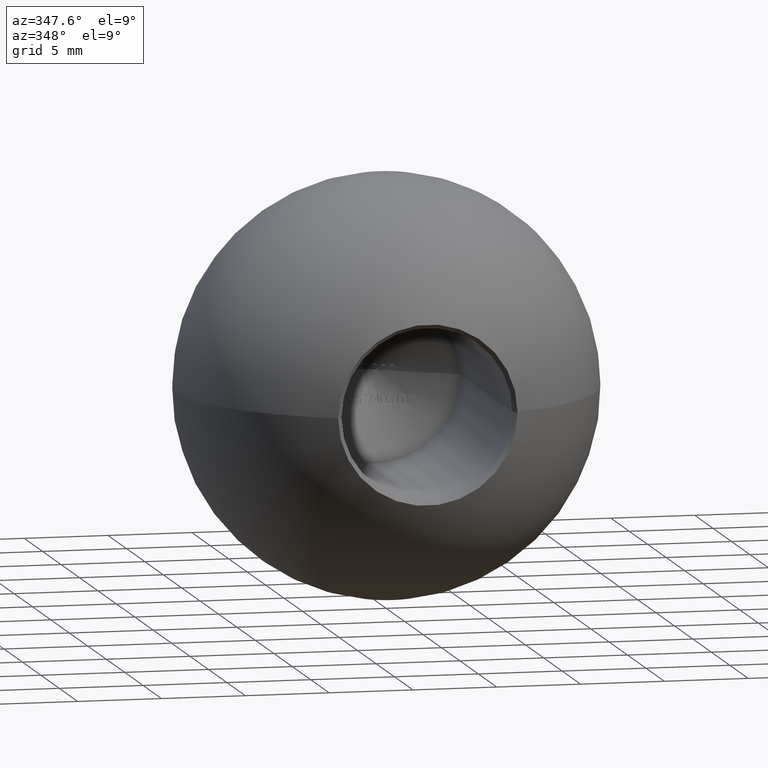
[diagram: clean part render]
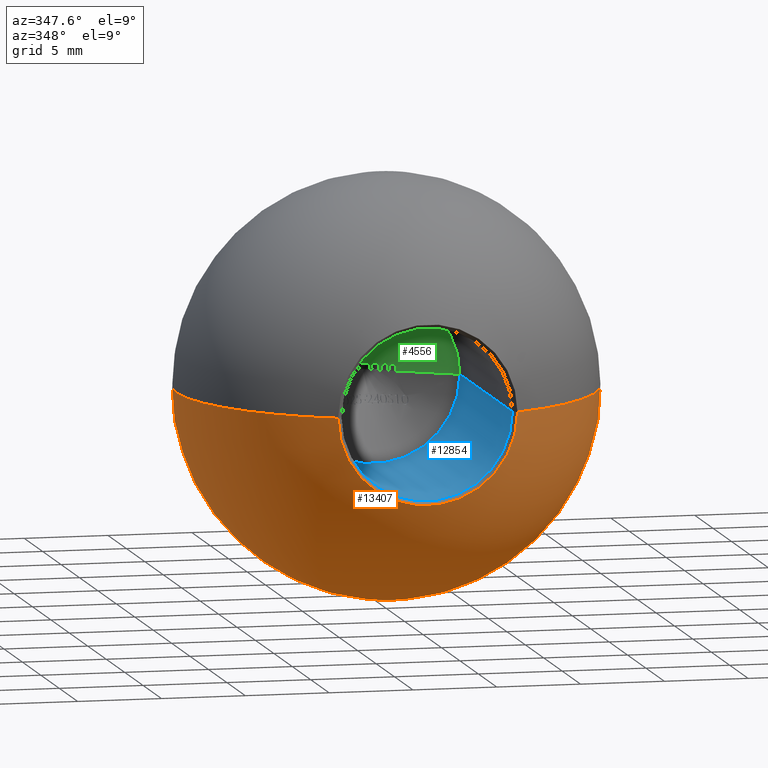
[diagram: same view with three faces highlighted in distinct colors, each labeled with its STEP entity id]
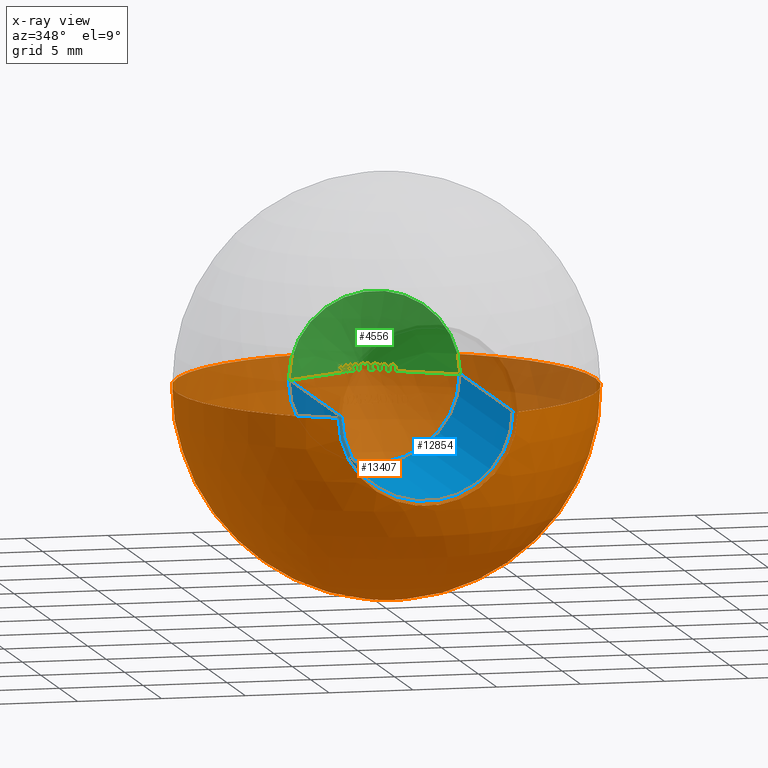
[diagram: x-ray of the same camera — body ghosted, the three highlighted faces saturated]
A machine part, auxiliary view with three faces highlighted in distinct colors.
The next image is the same camera in x-ray (body ghosted, the three faces saturated) — at least one of them is partly hidden behind the body in this view.
Their STEP definitions:

[orange] entity #13407 — the highlighted spherical surface has radius 12.5 mm.
#106 = EDGE_LOOP ( 'NONE', ( #5922, #4638, #8654 ) ) ;
#495 = AXIS2_PLACEMENT_3D ( 'NONE', #13169, #6847, #10016 ) ;
#681 = SPHERICAL_SURFACE ( 'NONE', #495, 12.50000000000000000 ) ;
#1130 = EDGE_CURVE ( 'NONE', #1519, #9566, #11875, .T. ) ;
#1519 = VERTEX_POINT ( 'NONE', #5612 ) ;
#1581 = CARTESIAN_POINT ( 'NONE',  ( -1.090719414508469100E-017, -11.29723417478809300, 0.0000000000000000000 ) ) ;
#1717 = DIRECTION ( 'NONE',  ( 1.000000000000000000, 0.0000000000000000000, -1.224646799147353200E-016 ) ) ;
#2272 = AXIS2_PLACEMENT_3D ( 'NONE', #7948, #2788, #1717 ) ;
#2364 = EDGE_CURVE ( 'NONE', #1519, #3524, #8276, .T. ) ;
#2677 = DIRECTION ( 'NONE',  ( 0.0000000000000000000, 0.0000000000000000000, -1.000000000000000000 ) ) ;
#2788 = DIRECTION ( 'NONE',  ( 1.224646799147353200E-016, -5.613030614964589700E-035, 1.000000000000000000 ) ) ;
#3524 = VERTEX_POINT ( 'NONE', #10489 ) ;
#3715 = DIRECTION ( 'NONE',  ( 1.000000000000000000, 0.0000000000000000000, 0.0000000000000000000 ) ) ;
#3945 = CIRCLE ( 'NONE', #9625, 5.350000000000003200 ) ;
#4638 = ORIENTED_EDGE ( 'NONE', *, *, #1130, .T. ) ;
#5031 = CARTESIAN_POINT ( 'NONE',  ( 5.350000000000003200, -11.29723417478809300, 0.0000000000000000000 ) ) ;
#5116 = AXIS2_PLACEMENT_3D ( 'NONE', #11107, #2677, #12004 ) ;
#5612 = CARTESIAN_POINT ( 'NONE',  ( 7.711334836214583000E-016, 12.50000000000000000, 0.0000000000000000000 ) ) ;
#5922 = ORIENTED_EDGE ( 'NONE', *, *, #2364, .F. ) ;
#6847 = DIRECTION ( 'NONE',  ( -0.0000000000000000000, 0.0000000000000000000, 1.000000000000000000 ) ) ;
#7948 = CARTESIAN_POINT ( 'NONE',  ( 0.0000000000000000000, 0.0000000000000000000, 0.0000000000000000000 ) ) ;
#8276 = CIRCLE ( 'NONE', #2272, 12.50000000000000000 ) ;
#8654 = ORIENTED_EDGE ( 'NONE', *, *, #11377, .F. ) ;
#9566 = VERTEX_POINT ( 'NONE', #5031 ) ;
#9625 = AXIS2_PLACEMENT_3D ( 'NONE', #1581, #10909, #3715 ) ;
#10016 = DIRECTION ( 'NONE',  ( 1.000000000000000000, -4.583387323490006000E-019, 0.0000000000000000000 ) ) ;
#10489 = CARTESIAN_POINT ( 'NONE',  ( -5.350000000000003200, -11.29723417478809300, 6.551860375438343600E-016 ) ) ;
#10909 = DIRECTION ( 'NONE',  ( -4.583387323490006000E-019, -1.000000000000000000, -0.0000000000000000000 ) ) ;
#11103 = FACE_OUTER_BOUND ( 'NONE', #106, .T. ) ;
#11107 = CARTESIAN_POINT ( 'NONE',  ( 0.0000000000000000000, 0.0000000000000000000, 0.0000000000000000000 ) ) ;
#11377 = EDGE_CURVE ( 'NONE', #3524, #9566, #3945, .T. ) ;
#11875 = CIRCLE ( 'NONE', #5116, 12.50000000000000000 ) ;
#12004 = DIRECTION ( 'NONE',  ( -1.000000000000000000, 0.0000000000000000000, 0.0000000000000000000 ) ) ;
#13169 = CARTESIAN_POINT ( 'NONE',  ( 0.0000000000000000000, 0.0000000000000000000, 0.0000000000000000000 ) ) ;
#13407 = ADVANCED_FACE ( 'NONE', ( #11103 ), #681, .T. ) ;

[blue] entity #12854 — the highlighted cylindrical surface (partial cylindrical patch) has radius 5.1 mm, axis along (-0, -1, -0).
#258 = CARTESIAN_POINT ( 'NONE',  ( -5.100000000000003200, -11.04723417478808600, 6.398779525544925700E-016 ) ) ;
#396 = DIRECTION ( 'NONE',  ( -4.583387323490006000E-019, -1.000000000000000000, -0.0000000000000000000 ) ) ;
#631 = DIRECTION ( 'NONE',  ( -4.583387323490006000E-019, -1.000000000000000000, -0.0000000000000000000 ) ) ;
#1116 = ORIENTED_EDGE ( 'NONE', *, *, #6761, .F. ) ;
#1771 = CARTESIAN_POINT ( 'NONE',  ( -2.856754284362197900E-018, 6.267154982252446200, 0.0000000000000000000 ) ) ;
#2239 = VERTEX_POINT ( 'NONE', #10583 ) ;
#2806 = CARTESIAN_POINT ( 'NONE',  ( 5.100000000000002300, 6.267154982252446200, 0.0000000000000000000 ) ) ;
#3419 = ORIENTED_EDGE ( 'NONE', *, *, #13510, .F. ) ;
#4443 = VECTOR ( 'NONE', #11667, 1000.000000000000000 ) ;
#4612 = VERTEX_POINT ( 'NONE', #6878 ) ;
#4842 = CARTESIAN_POINT ( 'NONE',  ( -5.100000000000000500, 3.202765825211907100, 6.245698675651501800E-016 ) ) ;
#5052 = DIRECTION ( 'NONE',  ( -4.583387323490006000E-019, -1.000000000000000000, -0.0000000000000000000 ) ) ;
#5401 = CARTESIAN_POINT ( 'NONE',  ( -5.100000000000002300, 6.267154982252446200, 6.245698675651503800E-016 ) ) ;
#5402 = CIRCLE ( 'NONE', #9117, 5.100000000000001400 ) ;
#5477 = VECTOR ( 'NONE', #5052, 1000.000000000000000 ) ;
#5568 = FACE_OUTER_BOUND ( 'NONE', #11782, .T. ) ;
#6417 = AXIS2_PLACEMENT_3D ( 'NONE', #1771, #631, #6828 ) ;
#6761 = EDGE_CURVE ( 'NONE', #4612, #2239, #8552, .T. ) ;
#6828 = DIRECTION ( 'NONE',  ( 1.000000000000000000, 0.0000000000000000000, 0.0000000000000000000 ) ) ;
#6878 = CARTESIAN_POINT ( 'NONE',  ( 5.100000000000000500, 3.202765825211907100, 0.0000000000000000000 ) ) ;
#7196 = DIRECTION ( 'NONE',  ( -4.583387323490006000E-019, -1.000000000000000000, -0.0000000000000000000 ) ) ;
#8315 = DIRECTION ( 'NONE',  ( 1.000000000000000000, 0.0000000000000000000, 0.0000000000000000000 ) ) ;
#8552 = LINE ( 'NONE', #2806, #5477 ) ;
#8576 = CARTESIAN_POINT ( 'NONE',  ( -1.079260946199743600E-017, -11.04723417478808600, 0.0000000000000000000 ) ) ;
#8684 = LINE ( 'NONE', #5401, #4443 ) ;
#9117 = AXIS2_PLACEMENT_3D ( 'NONE', #10461, #7196, #8315 ) ;
#9373 = EDGE_CURVE ( 'NONE', #12449, #11289, #8684, .T. ) ;
#9720 = DIRECTION ( 'NONE',  ( 1.000000000000000000, 0.0000000000000000000, 0.0000000000000000000 ) ) ;
#10123 = CYLINDRICAL_SURFACE ( 'NONE', #6417, 5.100000000000002300 ) ;
#10461 = CARTESIAN_POINT ( 'NONE',  ( -4.261282526024181400E-018, 3.202765825211907100, 0.0000000000000000000 ) ) ;
#10583 = CARTESIAN_POINT ( 'NONE',  ( 5.100000000000003200, -11.04723417478808600, 0.0000000000000000000 ) ) ;
#10710 = ORIENTED_EDGE ( 'NONE', *, *, #9373, .T. ) ;
#11077 = CIRCLE ( 'NONE', #12169, 5.100000000000003200 ) ;
#11134 = ORIENTED_EDGE ( 'NONE', *, *, #11291, .T. ) ;
#11289 = VERTEX_POINT ( 'NONE', #258 ) ;
#11291 = EDGE_CURVE ( 'NONE', #11289, #2239, #11077, .T. ) ;
#11667 = DIRECTION ( 'NONE',  ( -4.583387323490006000E-019, -1.000000000000000000, -0.0000000000000000000 ) ) ;
#11782 = EDGE_LOOP ( 'NONE', ( #3419, #10710, #11134, #1116 ) ) ;
#12169 = AXIS2_PLACEMENT_3D ( 'NONE', #8576, #396, #9720 ) ;
#12449 = VERTEX_POINT ( 'NONE', #4842 ) ;
#12854 = ADVANCED_FACE ( 'NONE', ( #5568 ), #10123, .F. ) ;
#13510 = EDGE_CURVE ( 'NONE', #12449, #4612, #5402, .T. ) ;

[green] entity #4556 — the highlighted conical surface has half-angle 59 deg.
#1 = CARTESIAN_POINT ( 'NONE',  ( -1.665518162393162500, 5.226525056420127800, 0.4748931623931637000 ) ) ;
#2 = ORIENTED_EDGE ( 'NONE', *, *, #10858, .T. ) ;
#38 = CARTESIAN_POINT ( 'NONE',  ( -0.4036591880341876000, 5.960658459343247500, 0.3118606436965825600 ) ) ;
#50 = CARTESIAN_POINT ( 'NONE',  ( -1.093929285720572500, 5.608455722432109900, 0.07284698006150282200 ) ) ;
#74 = CARTESIAN_POINT ( 'NONE',  ( -1.665518162393162500, 5.226525056420127800, 0.4748931623931637000 ) ) ;
#88 = CARTESIAN_POINT ( 'NONE',  ( 0.4240117521367506300, 5.986880085425346100, 0.1944093883547022300 ) ) ;
#129 = EDGE_CURVE ( 'NONE', #7302, #744, #11661, .T. ) ;
#142 = CARTESIAN_POINT ( 'NONE',  ( 1.387366452991452700, 5.401765160541393700, 0.3866987179489406200 ) ) ;
#146 = ORIENTED_EDGE ( 'NONE', *, *, #4831, .T. ) ;
#167 = EDGE_CURVE ( 'NONE', #2507, #715, #6854, .T. ) ;
#177 = CARTESIAN_POINT ( 'NONE',  ( 0.2195271746538756700, 5.997091779534444300, 0.3926857945464081200 ) ) ;
#236 = ORIENTED_EDGE ( 'NONE', *, *, #3248, .T. ) ;
#249 = CARTESIAN_POINT ( 'NONE',  ( -1.386734801842282900, 5.424015126249104300, 0.2157239969728518300 ) ) ;
#260 = CARTESIAN_POINT ( 'NONE',  ( 0.4969361190968362700, 5.968731545976554600, 0.03365518790540196500 ) ) ;
#263 = CARTESIAN_POINT ( 'NONE',  ( 0.1981194911858963900, 6.002448681904994900, 0.3934829059829073100 ) ) ;
#265 = VERTEX_POINT ( 'NONE', #12974 ) ;
#316 = CARTESIAN_POINT ( 'NONE',  ( -0.9056891025641026200, 5.686786320395422800, 0.3677208155215199700 ) ) ;
#321 = CARTESIAN_POINT ( 'NONE',  ( 0.4299054499318518700, 5.968145276054383600, 0.2510754663132673300 ) ) ;
#326 = CARTESIAN_POINT ( 'NONE',  ( 1.235356144932155500, 5.494770219432667500, 0.3560914932666455200 ) ) ;
#339 = DIRECTION ( 'NONE',  ( -4.583387323490006000E-019, -1.000000000000000000, -0.0000000000000000000 ) ) ;
#366 = LINE ( 'NONE', #8904, #3118 ) ;
#398 = CARTESIAN_POINT ( 'NONE',  ( -0.6914595132608604100, 5.851578703455372100, 0.03466187343251576900 ) ) ;
#405 = CARTESIAN_POINT ( 'NONE',  ( -0.2001335470085480500, 6.005529107985843500, 0.3866987179487192400 ) ) ;
#434 = EDGE_CURVE ( 'NONE', #6849, #12418, #1996, .T. ) ;
#449 = CARTESIAN_POINT ( 'NONE',  ( -0.6153909450648263900, 5.897390798044178000, -1.685488891819159000E-012 ) ) ;
#452 = VECTOR ( 'NONE', #13392, 1000.000000000000100 ) ;
#460 = CARTESIAN_POINT ( 'NONE',  ( -0.006280716957643003500, 6.038855588098083900, 0.3801676474007134000 ) ) ;
#462 = VERTEX_POINT ( 'NONE', #8368 ) ;
#484 = CARTESIAN_POINT ( 'NONE',  ( 0.9870993589743586300, 5.644221106105796100, 0.3169487847222235400 ) ) ;
#493 = CARTESIAN_POINT ( 'NONE',  ( -2.856754284362197900E-018, 6.267154982252446200, 0.0000000000000000000 ) ) ;
#506 = CARTESIAN_POINT ( 'NONE',  ( 0.04845395435313328000, 6.072061080536650800, 0.3211229367574691100 ) ) ;
#510 = CARTESIAN_POINT ( 'NONE',  ( 1.581987847222221700, 5.287638947772016700, 0.3934829059829073100 ) ) ;
#547 = CARTESIAN_POINT ( 'NONE',  ( 0.01864613191345227200, 6.048986751526029200, 0.3626138209288000100 ) ) ;
#558 = EDGE_CURVE ( 'NONE', #6472, #10487, #9116, .T. ) ;
#601 = CARTESIAN_POINT ( 'NONE',  ( -1.665518162393162500, 5.262344736065482900, 0.1723750554479999700 ) ) ;
#635 = ORIENTED_EDGE ( 'NONE', *, *, #3237, .T. ) ;
#637 = ORIENTED_EDGE ( 'NONE', *, *, #9492, .T. ) ;
#652 = ORIENTED_EDGE ( 'NONE', *, *, #8112, .T. ) ;
#664 = CARTESIAN_POINT ( 'NONE',  ( -0.1402505534701021500, 6.025579403046266200, 0.3768568281037176800 ) ) ;
#680 = CARTESIAN_POINT ( 'NONE',  ( -1.336835441720502400, 5.459016390179429300, 0.1484644909602529900 ) ) ;
#705 = CARTESIAN_POINT ( 'NONE',  ( -0.1275474555417484600, 6.024961178769279600, 0.3823658772373883000 ) ) ;
#714 = CARTESIAN_POINT ( 'NONE',  ( -0.8581997863247863300, 5.751496527392018400, 1.377727649040773000E-015 ) ) ;
#715 = VERTEX_POINT ( 'NONE', #2697 ) ;
#732 = CARTESIAN_POINT ( 'NONE',  ( 0.7994224229339556000, 5.733584353247521500, 0.3866987179487192400 ) ) ;
#737 = CARTESIAN_POINT ( 'NONE',  ( -0.1765711993143900300, 6.032259211221733300, 0.3487844694389335400 ) ) ;
#743 = EDGE_CURVE ( 'NONE', #1762, #7929, #9586, .T. ) ;
#744 = VERTEX_POINT ( 'NONE', #13440 ) ;
#754 = CARTESIAN_POINT ( 'NONE',  ( -1.665518162393162500, 5.254493374636976600, 0.2577991452991466600 ) ) ;
#833 = CARTESIAN_POINT ( 'NONE',  ( 0.7835737179487164400, 5.742123925756098800, 0.3866987179487192400 ) ) ;
#863 = CARTESIAN_POINT ( 'NONE',  ( -1.111269943920828200, 5.599436635841465600, 0.006422642840261838500 ) ) ;
#920 = CARTESIAN_POINT ( 'NONE',  ( -1.249353555073598400, 5.516467631766645700, 2.603982091311027400E-012 ) ) ;
#949 = ORIENTED_EDGE ( 'NONE', *, *, #10371, .T. ) ;
#972 = B_SPLINE_CURVE_WITH_KNOTS ( 'NONE', 3,
 ( #11797, #5915, #680, #7955, #2760, #4858, #9762, #10808, #1674, #3764, #5536, #12862, #3808, #5832, #12815, #11102 ),
 .UNSPECIFIED., .F., .F.,
 ( 4, 3, 3, 3, 3, 4 ),
 ( 0.0000000000000000000, 5.200546313378280400E-005, 0.0001044816825350145000, 0.0001518414543448481500, 0.0002073250983755087900, 0.0002424756323301376300 ),
 .UNSPECIFIED. ) ;
#1002 = CARTESIAN_POINT ( 'NONE',  ( 0.7404582119147448100, 5.771924229344797700, 0.3628013175215680800 ) ) ;
#1015 = EDGE_CURVE ( 'NONE', #12418, #3602, #5763, .T. ) ;
#1043 = CARTESIAN_POINT ( 'NONE',  ( -0.2476228632478643400, 6.100047504483716100, 0.1360234111885208200 ) ) ;
#1046 = CARTESIAN_POINT ( 'NONE',  ( -1.665518162393162500, 5.248994919083260800, 0.3120726495726509100 ) ) ;
#1065 = ORIENTED_EDGE ( 'NONE', *, *, #5201, .T. ) ;
#1104 = CARTESIAN_POINT ( 'NONE',  ( 1.434855769230768900, 5.374245579309560500, 0.3866987179487192400 ) ) ;
#1179 = CARTESIAN_POINT ( 'NONE',  ( 0.4246267918715368500, 5.992250444192496400, 0.1716231324943735300 ) ) ;
#1227 = CARTESIAN_POINT ( 'NONE',  ( 0.2962337679600832700, 5.991285353337021400, 0.3513793890083768400 ) ) ;
#1244 = CARTESIAN_POINT ( 'NONE',  ( 1.216844166198805600, 5.502848083155642600, 0.3708808937965546400 ) ) ;
#1275 = CARTESIAN_POINT ( 'NONE',  ( -0.4036591880341876000, 5.860739474616178900, 0.5427350427350440300 ) ) ;
#1308 = CARTESIAN_POINT ( 'NONE',  ( -1.713007478632478700, 5.237876248242500300, 1.377727649040773200E-015 ) ) ;
#1310 = B_SPLINE_CURVE_WITH_KNOTS ( 'NONE', 3,
 ( #4962, #5845, #10065, #737, #1741, #5931, #10017, #8975, #1789, #3914 ),
 .UNSPECIFIED., .F., .F.,
 ( 4, 3, 3, 4 ),
 ( 0.0000000000000000000, 3.851311768731044700E-005, 5.820392503490915000E-005, 7.820939082748007600E-005 ),
 .UNSPECIFIED. ) ;
#1352 = CARTESIAN_POINT ( 'NONE',  ( -2.856754284362197900E-018, 6.267154982252446200, 0.0000000000000000000 ) ) ;
#1382 = EDGE_CURVE ( 'NONE', #6995, #6922, #6425, .T. ) ;
#1397 = CARTESIAN_POINT ( 'NONE',  ( -0.9974127522193295700, 5.651844414777193600, 0.2329511510321152800 ) ) ;
#1399 = CARTESIAN_POINT ( 'NONE',  ( 1.434855769230768900, 5.384223553844125700, 0.3169487847222235400 ) ) ;
#1492 = CARTESIAN_POINT ( 'NONE',  ( -0.6548595648391182200, 5.873675658747110600, 0.01033408935832790200 ) ) ;
#1513 = CARTESIAN_POINT ( 'NONE',  ( 0.4240117521367506300, 5.986880085425346100, 0.1944093883547022300 ) ) ;
#1516 = ORIENTED_EDGE ( 'NONE', *, *, #4552, .T. ) ;
#1524 = CARTESIAN_POINT ( 'NONE',  ( -1.339877136752136500, 5.454587212226193100, 0.1831730769230782700 ) ) ;
#1547 = CARTESIAN_POINT ( 'NONE',  ( 0.05249883589302854100, 6.077895681479707200, 0.3106261459517767900 ) ) ;
#1640 = CARTESIAN_POINT ( 'NONE',  ( -0.9056891025641026200, 5.632732070951428600, 0.5427350427350441400 ) ) ;
#1641 = CARTESIAN_POINT ( 'NONE',  ( -1.455208333333333400, 5.347395588116418400, 0.4748931623931637000 ) ) ;
#1649 = EDGE_CURVE ( 'NONE', #2285, #6267, #2319, .T. ) ;
#1654 = CARTESIAN_POINT ( 'NONE',  ( 1.278819444444444100, 5.498762739239081700, 1.377727649040773000E-015 ) ) ;
#1674 = CARTESIAN_POINT ( 'NONE',  ( -1.285955296655554700, 5.493380004918342300, 0.06883884860569411400 ) ) ;
#1681 = CARTESIAN_POINT ( 'NONE',  ( 1.726575854700854300, 5.229723545398858400, 1.377727649040773000E-015 ) ) ;
#1716 = ORIENTED_EDGE ( 'NONE', *, *, #5103, .T. ) ;
#1734 = CARTESIAN_POINT ( 'NONE',  ( -1.455208333333333400, 5.344021825866038400, 0.4929917760098554400 ) ) ;
#1741 = CARTESIAN_POINT ( 'NONE',  ( -0.1721437568219745800, 6.030951374180595800, 0.3534654816710267600 ) ) ;
#1748 = ORIENTED_EDGE ( 'NONE', *, *, #4932, .T. ) ;
#1756 = CARTESIAN_POINT ( 'NONE',  ( -0.1210814108393998300, 6.024750430499767400, 0.3848925274108546700 ) ) ;
#1762 = VERTEX_POINT ( 'NONE', #5336 ) ;
#1780 = CARTESIAN_POINT ( 'NONE',  ( -1.455208333333333400, 5.379162734481079500, 0.2577991452991466600 ) ) ;
#1789 = CARTESIAN_POINT ( 'NONE',  ( -0.1519536589145236700, 6.026779899403716300, 0.3701252838174325900 ) ) ;
#1811 = CARTESIAN_POINT ( 'NONE',  ( -0.8581997863247864400, 5.708715858539539700, 0.3670273648661933600 ) ) ;
#1836 = CARTESIAN_POINT ( 'NONE',  ( 0.3290331196581185400, 6.069451938294108100, 0.07124521820471821400 ) ) ;
#1886 = CARTESIAN_POINT ( 'NONE',  ( -1.455208333333333400, 5.379162734481079500, 0.2577991452991466600 ) ) ;
#1908 = B_SPLINE_CURVE_WITH_KNOTS ( 'NONE', 3,
 ( #11006, #5588, #4715, #6782 ),
 .UNSPECIFIED., .F., .F.,
 ( 4, 4 ),
 ( 0.001113949000784927800, 0.001309064920045447800 ),
 .UNSPECIFIED. ) ;
#1933 = LINE ( 'NONE', #13115, #10558 ) ;
#1964 = CARTESIAN_POINT ( 'NONE',  ( 0.7835737179487164400, 5.748433009526109100, 0.3629723602616815600 ) ) ;
#1996 = B_SPLINE_CURVE_WITH_KNOTS ( 'NONE', 3,
 ( #6353, #11608, #10429, #7300 ),
 .UNSPECIFIED., .F., .F.,
 ( 4, 4 ),
 ( 0.0005482959629361229500, 0.0006026482079109895400 ),
 .UNSPECIFIED. ) ;
#2061 = B_SPLINE_CURVE_WITH_KNOTS ( 'NONE', 3,
 ( #11798, #9911, #5585, #1397, #5683, #8854 ),
 .UNSPECIFIED., .F., .F.,
 ( 4, 2, 4 ),
 ( 0.0000000000000000000, 7.452932963559028500E-005, 0.0001490586592711806200 ),
 .UNSPECIFIED. ) ;
#2063 = VERTEX_POINT ( 'NONE', #405 ) ;
#2067 = VECTOR ( 'NONE', #8332, 1000.000000000000100 ) ;
#2087 = EDGE_CURVE ( 'NONE', #8706, #9981, #8644, .T. ) ;
#2091 = CARTESIAN_POINT ( 'NONE',  ( -0.3561698717948714200, 5.961477665326988500, 0.3700356825753468600 ) ) ;
#2092 = CARTESIAN_POINT ( 'NONE',  ( -0.2476228632478642800, 5.991247414056215500, 0.3866987179520964300 ) ) ;
#2128 = VERTEX_POINT ( 'NONE', #6012 ) ;
#2167 = CARTESIAN_POINT ( 'NONE',  ( -1.342845219017093600, 5.437503352631498600, 0.3214009081196594300 ) ) ;
#2262 = CARTESIAN_POINT ( 'NONE',  ( 0.5334101365652340600, 5.946649837400293000, 0.01006262467085589600 ) ) ;
#2265 = CARTESIAN_POINT ( 'NONE',  ( 0.3288290285857585200, 6.019380020370522100, 0.2513440907403828900 ) ) ;
#2285 = VERTEX_POINT ( 'NONE', #5723 ) ;
#2301 = B_SPLINE_CURVE_WITH_KNOTS ( 'NONE', 3,
 ( #10963, #8727, #6695, #2491, #460, #8677, #547, #8778, #4725, #2540, #506, #1547, #7826 ),
 .UNSPECIFIED., .F., .F.,
 ( 4, 3, 3, 3, 4 ),
 ( 2.710505431213761100E-020, 4.734074943008892000E-005, 9.491457183015814200E-005, 0.0001384496987312372200, 0.0001759050593100010700 ),
 .UNSPECIFIED. ) ;
#2319 = B_SPLINE_CURVE_WITH_KNOTS ( 'NONE', 3,
 ( #8066, #5063, #1836, #10286 ),
 .UNSPECIFIED., .F., .F.,
 ( 4, 4 ),
 ( 0.001292567149524037800, 0.001505474627266286800 ),
 .UNSPECIFIED. ) ;
#2330 = CARTESIAN_POINT ( 'NONE',  ( -0.2476228632478642800, 6.118368155355957700, 1.377727649040773000E-015 ) ) ;
#2345 = VERTEX_POINT ( 'NONE', #3803 ) ;
#2357 = VERTEX_POINT ( 'NONE', #4800 ) ;
#2410 = CARTESIAN_POINT ( 'NONE',  ( 1.270315914121942200, 5.483873880114194000, 0.2936901107530287000 ) ) ;
#2419 = VERTEX_POINT ( 'NONE', #3329 ) ;
#2425 = CARTESIAN_POINT ( 'NONE',  ( -1.627234529150091600, 5.239126767765314200, 0.5291666666666680100 ) ) ;
#2443 = CARTESIAN_POINT ( 'NONE',  ( 1.710145773918360800, 5.222019843697876400, 0.3183697774840305600 ) ) ;
#2491 = CARTESIAN_POINT ( 'NONE',  ( -0.02079407405069851700, 6.035211614520256300, 0.3854581128389886800 ) ) ;
#2505 = CARTESIAN_POINT ( 'NONE',  ( 1.434855769230768900, 5.384223553844125700, 0.3169487847222235400 ) ) ;
#2507 = VERTEX_POINT ( 'NONE', #6683 ) ;
#2523 = CARTESIAN_POINT ( 'NONE',  ( 0.05628756009615280800, 6.083695705096259200, 0.3000943175747876600 ) ) ;
#2540 = CARTESIAN_POINT ( 'NONE',  ( 0.04309207885259142700, 6.066530975186235100, 0.3311020319034356800 ) ) ;
#2545 = CARTESIAN_POINT ( 'NONE',  ( -1.665518162393162500, 5.254493374636976600, 0.2577991452991466600 ) ) ;
#2550 = ORIENTED_EDGE ( 'NONE', *, *, #7988, .T. ) ;
#2572 = CARTESIAN_POINT ( 'NONE',  ( -0.7632211538461534100, 5.793921820068543800, 0.1944093883547022300 ) ) ;
#2595 = CARTESIAN_POINT ( 'NONE',  ( -1.323150783410401300, 5.445711043755291100, 0.3450018988909703300 ) ) ;
#2615 = CARTESIAN_POINT ( 'NONE',  ( -1.455208333333333400, 5.336761814852840400, 0.5291666666666680100 ) ) ;
#2623 = CARTESIAN_POINT ( 'NONE',  ( 1.278819444444444100, 5.498762739239081700, 1.377727649040773000E-015 ) ) ;
#2632 = VERTEX_POINT ( 'NONE', #4694 ) ;
#2661 = VERTEX_POINT ( 'NONE', #1654 ) ;
#2667 = CARTESIAN_POINT ( 'NONE',  ( 1.278819444444444100, 5.489654599789004100, 0.1974834735576936600 ) ) ;
#2682 = CARTESIAN_POINT ( 'NONE',  ( -1.665518162393162500, 5.266410708195257600, 0.08579326640383017100 ) ) ;
#2697 = CARTESIAN_POINT ( 'NONE',  ( -0.3561698717948713600, 6.053146532606814600, 1.377727649040773000E-015 ) ) ;
#2700 = VERTEX_POINT ( 'NONE', #9790 ) ;
#2760 = CARTESIAN_POINT ( 'NONE',  ( -1.325523987704849500, 5.467672474611196000, 0.1166909536807535100 ) ) ;
#2854 = CARTESIAN_POINT ( 'NONE',  ( 1.076997598257191500, 5.579497297016622800, 0.3871275609211937700 ) ) ;
#2859 = CARTESIAN_POINT ( 'NONE',  ( 0.7835737179487164400, 5.759683727781449200, 0.3151467347756423100 ) ) ;
#2876 = VERTEX_POINT ( 'NONE', #5024 ) ;
#2915 = CARTESIAN_POINT ( 'NONE',  ( 1.387366452991452700, 5.433541116489961600, 0.1288622227956156000 ) ) ;
#2954 = VERTEX_POINT ( 'NONE', #7200 ) ;
#2981 = CARTESIAN_POINT ( 'NONE',  ( -1.713007478632478700, 5.189885120238120200, 0.5291666666675177700 ) ) ;
#3018 = CARTESIAN_POINT ( 'NONE',  ( -0.6799325453821158900, 5.805913450534755600, 0.3571753214605998800 ) ) ;
#3022 = ORIENTED_EDGE ( 'NONE', *, *, #4176, .T. ) ;
#3041 = LINE ( 'NONE', #1352, #5847 ) ;
#3047 = ORIENTED_EDGE ( 'NONE', *, *, #13226, .T. ) ;
#3088 = CARTESIAN_POINT ( 'NONE',  ( -0.1144086390322943300, 6.024742828182622700, 0.3869417831195536300 ) ) ;
#3108 = B_SPLINE_CURVE_WITH_KNOTS ( 'NONE', 3,
 ( #3844, #2915, #5460, #7371 ),
 .UNSPECIFIED., .F., .F.,
 ( 4, 4 ),
 ( 0.0005591486516059470200, 0.0009447284463028098500 ),
 .UNSPECIFIED. ) ;
#3117 = EDGE_CURVE ( 'NONE', #2700, #2128, #8242, .T. ) ;
#3118 = VECTOR ( 'NONE', #13016, 1000.000000000000100 ) ;
#3146 = EDGE_CURVE ( 'NONE', #4021, #9953, #8911, .T. ) ;
#3149 = CARTESIAN_POINT ( 'NONE',  ( 1.434855769230768900, 5.384223553844125700, 0.3169487847222235400 ) ) ;
#3156 = ORIENTED_EDGE ( 'NONE', *, *, #9202, .T. ) ;
#3169 = CARTESIAN_POINT ( 'NONE',  ( -1.132021955750401200, 5.548161587722236600, 0.3878204280992205200 ) ) ;
#3215 = CARTESIAN_POINT ( 'NONE',  ( -0.5284715406823485800, 5.871738590694734600, 0.3925497902794602400 ) ) ;
#3217 = CARTESIAN_POINT ( 'NONE',  ( 0.4273741730753165000, 5.995690756633045700, 0.1483415511614869000 ) ) ;
#3219 = VERTEX_POINT ( 'NONE', #3578 ) ;
#3237 = EDGE_CURVE ( 'NONE', #13181, #2345, #9081, .T. ) ;
#3248 = EDGE_CURVE ( 'NONE', #6267, #11842, #1933, .T. ) ;
#3250 = CARTESIAN_POINT ( 'NONE',  ( -1.383672564581590600, 5.423531383320797000, 0.2392944843563435700 ) ) ;
#3265 = CARTESIAN_POINT ( 'NONE',  ( -1.073752915113377800, 5.619597205550753900, 0.09637610866972663700 ) ) ;
#3276 = CARTESIAN_POINT ( 'NONE',  ( 1.155344782319205300, 5.533953554816267100, 0.3927487351983345300 ) ) ;
#3280 = B_SPLINE_CURVE_WITH_KNOTS ( 'NONE', 3,
 ( #6419, #3215, #7365, #5409, #4224, #38 ),
 .UNSPECIFIED., .F., .F.,
 ( 4, 2, 4 ),
 ( 0.0000000000000000000, 0.0001050706478123605000, 0.0002101412956247210000 ),
 .UNSPECIFIED. ) ;
#3307 = ORIENTED_EDGE ( 'NONE', *, *, #6679, .T. ) ;
#3315 = AXIS2_PLACEMENT_3D ( 'NONE', #7817, #12869, #12915 ) ;
#3329 = CARTESIAN_POINT ( 'NONE',  ( -0.9938835470085466400, 5.659912005605580300, 0.1831730769230782700 ) ) ;
#3344 = CARTESIAN_POINT ( 'NONE',  ( 0.3290331196581185400, 6.032790807991834600, 0.2094618055555569100 ) ) ;
#3391 = CARTESIAN_POINT ( 'NONE',  ( -0.9056891025641026200, 5.722962067439267400, 0.1850619816413181200 ) ) ;
#3432 = CARTESIAN_POINT ( 'NONE',  ( -1.042373142122129800, 5.637060583188978800, 0.1147362466499165900 ) ) ;
#3462 = CARTESIAN_POINT ( 'NONE',  ( -4.261282526024181400E-018, 3.202765825211907100, 0.0000000000000000000 ) ) ;
#3463 = B_SPLINE_CURVE_WITH_KNOTS ( 'NONE', 3,
 ( #2545, #601, #2682, #7871 ),
 .UNSPECIFIED., .F., .F.,
 ( 4, 4 ),
 ( 0.001069521146006375500, 0.001324630182231710200 ),
 .UNSPECIFIED. ) ;
#3469 = CARTESIAN_POINT ( 'NONE',  ( -0.06678185096153951800, 6.027345635471307100, 0.3934829059829073600 ) ) ;
#3522 = CARTESIAN_POINT ( 'NONE',  ( -0.2001335470085480500, 6.029165661637201800, 0.3420078585838090000 ) ) ;
#3534 = B_SPLINE_CURVE_WITH_KNOTS ( 'NONE', 3,
 ( #12588, #10402, #7315, #74 ),
 .UNSPECIFIED., .F., .F.,
 ( 4, 4 ),
 ( 0.0007686201885597117100, 0.001011160870803255600 ),
 .UNSPECIFIED. ) ;
#3552 = B_SPLINE_CURVE_WITH_KNOTS ( 'NONE', 3,
 ( #142, #7335, #4233, #1104 ),
 .UNSPECIFIED., .F., .F.,
 ( 4, 4 ),
 ( 0.0007539866933052219400, 0.0008088696090719906900 ),
 .UNSPECIFIED. ) ;
#3568 = CARTESIAN_POINT ( 'NONE',  ( 0.08779943702463780000, 6.051435221564700500, 0.3485925733421038600 ) ) ;
#3578 = CARTESIAN_POINT ( 'NONE',  ( 1.726575854700854300, 5.222959506405232800, 0.1974834735576936600 ) ) ;
#3583 = CARTESIAN_POINT ( 'NONE',  ( 1.603071530940851000, 5.275451492246479500, 0.3927497666173400100 ) ) ;
#3602 = VERTEX_POINT ( 'NONE', #9704 ) ;
#3623 = VERTEX_POINT ( 'NONE', #5617 ) ;
#3633 = CARTESIAN_POINT ( 'NONE',  ( 1.726504110921091500, 5.221339461027840300, 0.2218370612504829700 ) ) ;
#3655 = CARTESIAN_POINT ( 'NONE',  ( 0.9870993589743586300, 5.630157408753335700, 0.3866987179487192400 ) ) ;
#3693 = VERTEX_POINT ( 'NONE', #4549 ) ;
#3704 = ORIENTED_EDGE ( 'NONE', *, *, #12755, .T. ) ;
#3717 = B_SPLINE_CURVE_WITH_KNOTS ( 'NONE', 3,
 ( #10799, #6769, #11931, #1524 ),
 .UNSPECIFIED., .F., .F.,
 ( 4, 4 ),
 ( 0.0007764137613057791500, 0.001178708737409240100 ),
 .UNSPECIFIED. ) ;
#3731 = CARTESIAN_POINT ( 'NONE',  ( 0.7835737179487164400, 5.742123925756098800, 0.3866987179487192400 ) ) ;
#3738 = B_SPLINE_CURVE_WITH_KNOTS ( 'NONE', 3,
 ( #4007, #12412, #1043, #8311, #11284, #2092 ),
 .UNSPECIFIED., .F., .F.,
 ( 4, 2, 4 ),
 ( 0.0004346231488839884500, 0.0006396591545424338600, 0.0008446951602008793800 ),
 .UNSPECIFIED. ) ;
#3764 = CARTESIAN_POINT ( 'NONE',  ( -1.274064773147430200, 5.500733402194362600, 0.06132297238098010500 ) ) ;
#3803 = CARTESIAN_POINT ( 'NONE',  ( -1.455208333333333400, 5.347395588116418400, 0.4748931623931637000 ) ) ;
#3808 = CARTESIAN_POINT ( 'NONE',  ( -1.229109325351579500, 5.528166811389588100, 0.04361298208247811600 ) ) ;
#3814 = CARTESIAN_POINT ( 'NONE',  ( -1.135927483978443000, 5.584620891064923300, -8.256490010616037700E-013 ) ) ;
#3819 = CARTESIAN_POINT ( 'NONE',  ( 0.8310630341880326200, 5.748278528349710600, 0.2609030221954067900 ) ) ;
#3836 = EDGE_CURVE ( 'NONE', #9981, #3623, #11902, .T. ) ;
#3844 = CARTESIAN_POINT ( 'NONE',  ( 1.387366452991452700, 5.433541116489935900, 1.377727649040773000E-015 ) ) ;
#3852 = CARTESIAN_POINT ( 'NONE',  ( -1.035966713408119400, 5.616127971350614700, 0.3173727964743602900 ) ) ;
#3904 = B_SPLINE_CURVE_WITH_KNOTS ( 'NONE', 3,
 ( #12248, #9243, #12472, #13352 ),
 .UNSPECIFIED., .F., .F.,
 ( 4, 4 ),
 ( 0.001695634565057545100, 0.001939728188776994800 ),
 .UNSPECIFIED. ) ;
#3911 = CARTESIAN_POINT ( 'NONE',  ( 1.005612657392078900, 5.629373160608808200, 0.3401211589749970600 ) ) ;
#3914 = CARTESIAN_POINT ( 'NONE',  ( -0.1464960603632489100, 6.025879971838114600, 0.3738723624465825100 ) ) ;
#3918 = EDGE_CURVE ( 'NONE', #6995, #265, #6659, .T. ) ;
#3963 = ORIENTED_EDGE ( 'NONE', *, *, #167, .T. ) ;
#3964 = B_SPLINE_CURVE_WITH_KNOTS ( 'NONE', 3,
 ( #263, #177, #9595, #6343, #1227, #12653, #2265, #3344 ),
 .UNSPECIFIED., .F., .F.,
 ( 4, 2, 2, 4 ),
 ( 0.0000000000000000000, 6.573407523536850400E-005, 0.0001314681504707370600, 0.0002629363009414747200 ),
 .UNSPECIFIED. ) ;
#4007 = CARTESIAN_POINT ( 'NONE',  ( -0.2476228632478642800, 6.118368155355957700, 1.377727649040773000E-015 ) ) ;
#4021 = VERTEX_POINT ( 'NONE', #7339 ) ;
#4050 = VERTEX_POINT ( 'NONE', #4101 ) ;
#4068 = CARTESIAN_POINT ( 'NONE',  ( -0.06678185096153951800, 6.027345635471307100, 0.3934829059829073600 ) ) ;
#4101 = CARTESIAN_POINT ( 'NONE',  ( -1.342845219017093600, 5.437503352631498600, 0.3214009081196594300 ) ) ;
#4115 = EDGE_CURVE ( 'NONE', #2128, #8770, #6568, .T. ) ;
#4124 = CARTESIAN_POINT ( 'NONE',  ( -0.5847422711532479500, 5.843993590998018700, 0.3927772616629361400 ) ) ;
#4132 = CARTESIAN_POINT ( 'NONE',  ( -0.3561698717948715300, 5.877095860617632900, 0.5427350427350440300 ) ) ;
#4176 = EDGE_CURVE ( 'NONE', #7929, #4748, #2301, .T. ) ;
#4224 = CARTESIAN_POINT ( 'NONE',  ( -0.4225331317246405200, 5.942772426475223700, 0.3361200866071058500 ) ) ;
#4233 = CARTESIAN_POINT ( 'NONE',  ( 1.419030507529077000, 5.383426774790950600, 0.3866987179487192400 ) ) ;
#4236 = EDGE_CURVE ( 'NONE', #4850, #6412, #5749, .T. ) ;
#4242 = CARTESIAN_POINT ( 'NONE',  ( -0.09430882788232908300, 6.025124224263576500, 0.3918519830906626000 ) ) ;
#4298 = VERTEX_POINT ( 'NONE', #6841 ) ;
#4339 = EDGE_CURVE ( 'NONE', #744, #4850, #10995, .T. ) ;
#4410 = EDGE_CURVE ( 'NONE', #2661, #2876, #3041, .T. ) ;
#4421 = CARTESIAN_POINT ( 'NONE',  ( -0.2001335470085480500, 6.017427637326998800, 0.3644013415831465200 ) ) ;
#4444 = ORIENTED_EDGE ( 'NONE', *, *, #434, .T. ) ;
#4477 = CARTESIAN_POINT ( 'NONE',  ( -0.3561698717948713600, 6.053146532606814600, 1.377727649040773000E-015 ) ) ;
#4510 = EDGE_CURVE ( 'NONE', #3219, #6116, #1908, .T. ) ;
#4538 = CARTESIAN_POINT ( 'NONE',  ( 0.5052355336211183900, 5.895981848371950400, 0.3554560686072436000 ) ) ;
#4546 = B_SPLINE_CURVE_WITH_KNOTS ( 'NONE', 3,
 ( #8915, #9820, #11151, #9010, #863, #3814 ),
 .UNSPECIFIED., .F., .F.,
 ( 4, 2, 4 ),
 ( 0.0000000000000000000, 8.830037477417845200E-005, 0.0001766007495483569000 ),
 .UNSPECIFIED. ) ;
#4549 = CARTESIAN_POINT ( 'NONE',  ( -1.387366452991452700, 5.425572331827883200, 0.1922893295940184500 ) ) ;
#4552 = EDGE_CURVE ( 'NONE', #6765, #2661, #9157, .T. ) ;
#4556 = ADVANCED_FACE ( 'NONE', ( #6984 ), #12174, .F. ) ;
#4579 = ORIENTED_EDGE ( 'NONE', *, *, #8025, .T. ) ;
#4583 = CARTESIAN_POINT ( 'NONE',  ( -1.247535108924801700, 5.482099344824638000, 0.3886972820191096400 ) ) ;
#4586 = CARTESIAN_POINT ( 'NONE',  ( 0.4681744587720969000, 5.926259805119753000, 0.3204797308143999000 ) ) ;
#4595 = ORIENTED_EDGE ( 'NONE', *, *, #129, .T. ) ;
#4612 = VERTEX_POINT ( 'NONE', #6878 ) ;
#4634 = CARTESIAN_POINT ( 'NONE',  ( -1.342845219017093600, 5.437503352631498600, 0.3214009081196594300 ) ) ;
#4665 = CARTESIAN_POINT ( 'NONE',  ( -0.7625839456207294000, 5.797794237672445000, 0.1708018247460699200 ) ) ;
#4667 = ORIENTED_EDGE ( 'NONE', *, *, #4115, .T. ) ;
#4694 = CARTESIAN_POINT ( 'NONE',  ( -0.2476228632478642800, 5.991247414056215500, 0.3866987179520964300 ) ) ;
#4715 = CARTESIAN_POINT ( 'NONE',  ( 1.726575854700854300, 5.229723545398860200, 0.06572453595774037400 ) ) ;
#4725 = CARTESIAN_POINT ( 'NONE',  ( 0.03691465003644354300, 6.060159728381915300, 0.3425989698512761400 ) ) ;
#4737 = CARTESIAN_POINT ( 'NONE',  ( 0.9870993589743586300, 5.639943365960974100, 0.3402361189267292300 ) ) ;
#4748 = VERTEX_POINT ( 'NONE', #8255 ) ;
#4780 = VERTEX_POINT ( 'NONE', #3149 ) ;
#4790 = EDGE_CURVE ( 'NONE', #3623, #10487, #3463, .T. ) ;
#4800 = CARTESIAN_POINT ( 'NONE',  ( -1.713007478632478700, 5.237876248242500300, 1.377727649040773200E-015 ) ) ;
#4831 = EDGE_CURVE ( 'NONE', #4050, #11168, #6339, .T. ) ;
#4842 = CARTESIAN_POINT ( 'NONE',  ( -5.100000000000000500, 3.202765825211907100, 6.245698675651501800E-016 ) ) ;
#4850 = VERTEX_POINT ( 'NONE', #13299 ) ;
#4858 = CARTESIAN_POINT ( 'NONE',  ( -1.316873170836175400, 5.473560861377897900, 0.1019429019742886000 ) ) ;
#4894 = CARTESIAN_POINT ( 'NONE',  ( -0.8581997863247863300, 5.751496527392037100, 0.09230022035434319600 ) ) ;
#4909 = ORIENTED_EDGE ( 'NONE', *, *, #11165, .T. ) ;
#4922 = ORIENTED_EDGE ( 'NONE', *, *, #10622, .T. ) ;
#4931 = CARTESIAN_POINT ( 'NONE',  ( -2.856754284362197900E-018, 6.267154982252446200, 0.0000000000000000000 ) ) ;
#4932 = EDGE_CURVE ( 'NONE', #2954, #1762, #1310, .T. ) ;
#4960 = CARTESIAN_POINT ( 'NONE',  ( 0.6271133814102548600, 5.822315180913226300, 0.3934829059829073100 ) ) ;
#4962 = CARTESIAN_POINT ( 'NONE',  ( -0.2001335470085480500, 6.040630432307496600, 0.3194928552350440600 ) ) ;
#4986 = B_SPLINE_CURVE_WITH_KNOTS ( 'NONE', 3,
 ( #10236, #8178, #13295, #10276 ),
 .UNSPECIFIED., .F., .F.,
 ( 4, 4 ),
 ( 0.0006731438893819926000, 0.0007231341094867461200 ),
 .UNSPECIFIED. ) ;
#4995 = VERTEX_POINT ( 'NONE', #13122 ) ;
#5012 = CARTESIAN_POINT ( 'NONE',  ( -1.322011995031398000, 5.472792905030005700, 0.03412153390940569200 ) ) ;
#5024 = CARTESIAN_POINT ( 'NONE',  ( 1.387366452991452700, 5.433541116489935900, 1.377727649040773000E-015 ) ) ;
#5048 = CARTESIAN_POINT ( 'NONE',  ( -0.7624552855048825100, 5.790335804340728000, 0.2215941953324585500 ) ) ;
#5063 = CARTESIAN_POINT ( 'NONE',  ( 0.3290331196581185400, 6.054509512863268700, 0.1421528542886498200 ) ) ;
#5068 = CARTESIAN_POINT ( 'NONE',  ( -1.626907048381997600, 5.277415591221261700, 0.2577991452991466600 ) ) ;
#5103 = EDGE_CURVE ( 'NONE', #6472, #3693, #12165, .T. ) ;
#5114 = ORIENTED_EDGE ( 'NONE', *, *, #1015, .T. ) ;
#5119 = ORIENTED_EDGE ( 'NONE', *, *, #3836, .T. ) ;
#5129 = CARTESIAN_POINT ( 'NONE',  ( -0.4036591880341876000, 5.960658459343247500, 0.3118606436965825600 ) ) ;
#5178 = EDGE_CURVE ( 'NONE', #9382, #2632, #3738, .T. ) ;
#5185 = CARTESIAN_POINT ( 'NONE',  ( -1.386712833582675500, 5.427841656414991600, 0.1694951814833216300 ) ) ;
#5201 = EDGE_CURVE ( 'NONE', #7714, #7302, #7330, .T. ) ;
#5321 = EDGE_CURVE ( 'NONE', #6133, #4780, #8737, .T. ) ;
#5336 = CARTESIAN_POINT ( 'NONE',  ( -0.1464960603632489100, 6.025879971838114600, 0.3738723624465825100 ) ) ;
#5409 = CARTESIAN_POINT ( 'NONE',  ( -0.4440439163917850300, 5.924513295526155700, 0.3578262262275222500 ) ) ;
#5458 = ORIENTED_EDGE ( 'NONE', *, *, #6950, .F. ) ;
#5460 = CARTESIAN_POINT ( 'NONE',  ( 1.387366452991452700, 5.422300018111805300, 0.2594119485840013500 ) ) ;
#5519 = EDGE_CURVE ( 'NONE', #6412, #12668, #12992, .T. ) ;
#5536 = CARTESIAN_POINT ( 'NONE',  ( -1.260190480245025700, 5.509313612104004500, 0.05255317615723532900 ) ) ;
#5550 = B_SPLINE_CURVE_WITH_KNOTS ( 'NONE', 3,
 ( #9034, #13228, #11179, #12214 ),
 .UNSPECIFIED., .F., .F.,
 ( 4, 4 ),
 ( 0.001115530880268211800, 0.001168853923399882700 ),
 .UNSPECIFIED. ) ;
#5558 = CARTESIAN_POINT ( 'NONE',  ( 0.9396100427350423400, 5.656637147536415900, 0.3866987179487194100 ) ) ;
#5567 = B_SPLINE_CURVE_WITH_KNOTS ( 'NONE', 3,
 ( #7437, #3276, #11612, #1244, #326, #9649, #2410, #7514, #9700, #9570 ),
 .UNSPECIFIED., .F., .F.,
 ( 4, 2, 2, 2, 4 ),
 ( 0.0000000000000000000, 7.191098164294532300E-005, 0.0001438219632858906500, 0.0002157329449288359700, 0.0002876439265717812900 ),
 .UNSPECIFIED. ) ;
#5572 = EDGE_CURVE ( 'NONE', #4298, #6765, #5567, .T. ) ;
#5585 = CARTESIAN_POINT ( 'NONE',  ( -1.011582755905473100, 5.636763011305016700, 0.2789898398214014100 ) ) ;
#5588 = CARTESIAN_POINT ( 'NONE',  ( 1.726575854700854300, 5.227436003916140300, 0.1319230251439247600 ) ) ;
#5597 = CARTESIAN_POINT ( 'NONE',  ( -0.9056891025641026200, 5.722962067439266500, 1.377727649040773000E-015 ) ) ;
#5602 = CARTESIAN_POINT ( 'NONE',  ( 1.624168930705931900, 5.263597191176247100, 0.3896531574412155400 ) ) ;
#5605 = DIRECTION ( 'NONE',  ( -0.8571673007021137800, -0.5150380749100518200, 1.049727191138620400E-016 ) ) ;
#5607 = CIRCLE ( 'NONE', #10855, 5.100000000000001400 ) ;
#5617 = CARTESIAN_POINT ( 'NONE',  ( -1.665518162393162500, 5.254493374636976600, 0.2577991452991466600 ) ) ;
#5634 = EDGE_CURVE ( 'NONE', #2632, #2063, #8314, .T. ) ;
#5635 = CARTESIAN_POINT ( 'NONE',  ( -0.2001335470085480500, 6.040630432307496600, 0.3194928552350440600 ) ) ;
#5659 = ORIENTED_EDGE ( 'NONE', *, *, #2087, .T. ) ;
#5683 = CARTESIAN_POINT ( 'NONE',  ( -0.9946420004786069600, 5.656741262228509400, 0.2081726088802166600 ) ) ;
#5723 = CARTESIAN_POINT ( 'NONE',  ( 0.3290331196581185400, 6.032790807991834600, 0.2094618055555569100 ) ) ;
#5749 = B_SPLINE_CURVE_WITH_KNOTS ( 'NONE', 3,
 ( #8053, #3819, #9098, #6886 ),
 .UNSPECIFIED., .F., .F.,
 ( 4, 4 ),
 ( 0.0005338129021308661500, 0.0009224954428900894700 ),
 .UNSPECIFIED. ) ;
#5758 = EDGE_CURVE ( 'NONE', #10362, #8706, #3904, .T. ) ;
#5763 = B_SPLINE_CURVE_WITH_KNOTS ( 'NONE', 3,
 ( #9936, #10974, #4737, #484 ),
 .UNSPECIFIED., .F., .F.,
 ( 4, 4 ),
 ( 0.001016972060942798700, 0.001087351183951046500 ),
 .UNSPECIFIED. ) ;
#5772 = CARTESIAN_POINT ( 'NONE',  ( 0.1981194911858963900, 6.002448681904994900, 0.3934829059829073100 ) ) ;
#5789 = DIRECTION ( 'NONE',  ( 0.8571673007021137800, -0.5150380749100518200, 0.0000000000000000000 ) ) ;
#5824 = CARTESIAN_POINT ( 'NONE',  ( -0.8581997863247864400, 5.742091616522960100, 0.1858619006148808700 ) ) ;
#5832 = CARTESIAN_POINT ( 'NONE',  ( -1.219117226891498000, 5.534208630079066700, 0.04165419064811768500 ) ) ;
#5833 = B_SPLINE_CURVE_WITH_KNOTS ( 'NONE', 3,
 ( #6979, #3911, #8101, #2854, #7057, #11155 ),
 .UNSPECIFIED., .F., .F.,
 ( 4, 2, 4 ),
 ( 0.0000000000000000000, 9.862340729945622800E-005, 0.0001972468145989124600 ),
 .UNSPECIFIED. ) ;
#5845 = CARTESIAN_POINT ( 'NONE',  ( -0.1927462018438458300, 6.037833683115549000, 0.3296127375486472800 ) ) ;
#5847 = VECTOR ( 'NONE', #10596, 1000.000000000000100 ) ;
#5903 = EDGE_CURVE ( 'NONE', #12329, #6133, #3552, .T. ) ;
#5905 = B_SPLINE_CURVE_WITH_KNOTS ( 'NONE', 3,
 ( #2505, #7035, #7072, #9027, #12208, #5989 ),
 .UNSPECIFIED., .F., .F.,
 ( 4, 2, 4 ),
 ( 0.0000000000000000000, 9.833793278554649400E-005, 0.0001966758655710929900 ),
 .UNSPECIFIED. ) ;
#5915 = CARTESIAN_POINT ( 'NONE',  ( -1.339089859469130100, 5.456457039571733800, 0.1659570519032278200 ) ) ;
#5931 = CARTESIAN_POINT ( 'NONE',  ( -0.1674813876457002200, 6.029716772435384600, 0.3579710547640183000 ) ) ;
#5989 = CARTESIAN_POINT ( 'NONE',  ( 1.581987847222221700, 5.287638947772016700, 0.3934829059829073100 ) ) ;
#5990 = EDGE_CURVE ( 'NONE', #10133, #462, #10641, .T. ) ;
#6012 = CARTESIAN_POINT ( 'NONE',  ( -1.056425280448717800, 5.628163926676639200, 0.1221153846153860100 ) ) ;
#6081 = ORIENTED_EDGE ( 'NONE', *, *, #5758, .T. ) ;
#6099 = CARTESIAN_POINT ( 'NONE',  ( -1.286778537504763300, 5.493980433655927700, 0.009729627450627706400 ) ) ;
#6102 = CARTESIAN_POINT ( 'NONE',  ( -1.161648106492324500, 5.530378057428938700, 0.3927113657888042200 ) ) ;
#6106 = VECTOR ( 'NONE', #5605, 1000.000000000000100 ) ;
#6114 = DIRECTION ( 'NONE',  ( -0.8571673007021137800, -0.5150380749100518200, 1.049727191138620400E-016 ) ) ;
#6116 = VERTEX_POINT ( 'NONE', #1681 ) ;
#6133 = VERTEX_POINT ( 'NONE', #6929 ) ;
#6135 = CARTESIAN_POINT ( 'NONE',  ( -0.6096454098510538700, 5.832558923925153000, 0.3897251748211868500 ) ) ;
#6145 = CARTESIAN_POINT ( 'NONE',  ( -1.383794421931994900, 5.431108004442357600, 0.1468272505587845400 ) ) ;
#6190 = CARTESIAN_POINT ( 'NONE',  ( -1.665518162393162500, 5.242984687833031300, 0.3663856818954873100 ) ) ;
#6192 = EDGE_CURVE ( 'NONE', #8770, #4995, #4546, .T. ) ;
#6207 = CARTESIAN_POINT ( 'NONE',  ( -2.856754284362197900E-018, 6.267154982252446200, 0.0000000000000000000 ) ) ;
#6217 = ORIENTED_EDGE ( 'NONE', *, *, #6663, .T. ) ;
#6267 = VERTEX_POINT ( 'NONE', #7052 ) ;
#6316 = ORIENTED_EDGE ( 'NONE', *, *, #8758, .T. ) ;
#6332 = CARTESIAN_POINT ( 'NONE',  ( 0.7835737179487164400, 5.759683727781449200, 0.3151467347756423100 ) ) ;
#6336 = ORIENTED_EDGE ( 'NONE', *, *, #558, .F. ) ;
#6339 = B_SPLINE_CURVE_WITH_KNOTS ( 'NONE', 3,
 ( #4634, #2595, #7734, #4583, #12985, #11870 ),
 .UNSPECIFIED., .F., .F.,
 ( 4, 2, 4 ),
 ( 0.0000000000000000000, 9.447378481608817700E-005, 0.0001889475696321763500 ),
 .UNSPECIFIED. ) ;
#6343 = CARTESIAN_POINT ( 'NONE',  ( 0.2798642881807401100, 5.989793790347458300, 0.3677408391487078100 ) ) ;
#6353 = CARTESIAN_POINT ( 'NONE',  ( 0.9396100427350423400, 5.656637147536415900, 0.3866987179487194100 ) ) ;
#6380 = ORIENTED_EDGE ( 'NONE', *, *, #3146, .T. ) ;
#6412 = VERTEX_POINT ( 'NONE', #10311 ) ;
#6419 = CARTESIAN_POINT ( 'NONE',  ( -0.5601195245726492400, 5.855856044403478400, 0.3934829059829073100 ) ) ;
#6425 = B_SPLINE_CURVE_WITH_KNOTS ( 'NONE', 3,
 ( #449, #1492, #398, #9811, #10911, #11899, #4665, #8663 ),
 .UNSPECIFIED., .F., .F.,
 ( 4, 2, 2, 4 ),
 ( 6.300518127704885700E-005, 0.0002043452114813052400, 0.0002750152265834335800, 0.0003456852416855619000 ),
 .UNSPECIFIED. ) ;
#6465 = CARTESIAN_POINT ( 'NONE',  ( -1.713007478632478700, 5.220713184183793500, 0.3553342370458001900 ) ) ;
#6472 = VERTEX_POINT ( 'NONE', #6581 ) ;
#6485 = B_SPLINE_CURVE_WITH_KNOTS ( 'NONE', 3,
 ( #1, #12417, #6190, #1046 ),
 .UNSPECIFIED., .F., .F.,
 ( 4, 4 ),
 ( 0.001409944834725118700, 0.001572411346928517700 ),
 .UNSPECIFIED. ) ;
#6517 = CARTESIAN_POINT ( 'NONE',  ( -0.4036591880341876000, 5.897203062136815900, 0.4671050043531945800 ) ) ;
#6560 = CARTESIAN_POINT ( 'NONE',  ( -1.014236111111110700, 5.654787787380717700, 0.09996077056624068400 ) ) ;
#6568 = B_SPLINE_CURVE_WITH_KNOTS ( 'NONE', 3,
 ( #12701, #3432, #10730, #11687 ),
 .UNSPECIFIED., .F., .F.,
 ( 4, 4 ),
 ( 2.589674448281264700E-007, 5.484452315193591400E-005 ),
 .UNSPECIFIED. ) ;
#6581 = CARTESIAN_POINT ( 'NONE',  ( -1.249353555073598400, 5.516467631766645700, 2.603982091311027400E-012 ) ) ;
#6636 = CARTESIAN_POINT ( 'NONE',  ( -1.339877136752136500, 5.454587212226193100, 0.1831730769230782700 ) ) ;
#6653 = B_SPLINE_CURVE_WITH_KNOTS ( 'NONE', 3,
 ( #1308, #9503, #6465, #11504 ),
 .UNSPECIFIED., .F., .F.,
 ( 4, 4 ),
 ( 0.0006708071156749997900, 0.001199135406700056100 ),
 .UNSPECIFIED. ) ;
#6659 = LINE ( 'NONE', #10159, #452 ) ;
#6663 = EDGE_CURVE ( 'NONE', #462, #2507, #4986, .T. ) ;
#6679 = EDGE_CURVE ( 'NONE', #3602, #4298, #5833, .T. ) ;
#6683 = CARTESIAN_POINT ( 'NONE',  ( -0.3561698717948715300, 5.877095860617632900, 0.5427350427350440300 ) ) ;
#6687 = CARTESIAN_POINT ( 'NONE',  ( 1.434855769230768900, 5.374245579309560500, 0.3866987179487192400 ) ) ;
#6695 = CARTESIAN_POINT ( 'NONE',  ( -0.03522397244553410200, 6.031588595521661500, 0.3907181555876254600 ) ) ;
#6699 = CARTESIAN_POINT ( 'NONE',  ( 1.664271747610637000, 5.242636796430878700, 0.3710756617157936500 ) ) ;
#6765 = VERTEX_POINT ( 'NONE', #9227 ) ;
#6769 = CARTESIAN_POINT ( 'NONE',  ( -1.109342114104545400, 5.591686518369832500, 0.1831730769230782700 ) ) ;
#6772 = CARTESIAN_POINT ( 'NONE',  ( 1.581987847222221700, 5.287638947772016700, 0.3934829059829073100 ) ) ;
#6782 = CARTESIAN_POINT ( 'NONE',  ( 1.726575854700854300, 5.229723545398858400, 1.377727649040773000E-015 ) ) ;
#6801 = VERTEX_POINT ( 'NONE', #11203 ) ;
#6841 = CARTESIAN_POINT ( 'NONE',  ( 1.134231436965811500, 5.545794406806913400, 0.3934829059829073100 ) ) ;
#6849 = VERTEX_POINT ( 'NONE', #11323 ) ;
#6854 = B_SPLINE_CURVE_WITH_KNOTS ( 'NONE', 3,
 ( #4132, #11412, #2091, #10412, #8820, #4477 ),
 .UNSPECIFIED., .F., .F.,
 ( 4, 2, 4 ),
 ( 0.001159577046424815800, 0.001446737201897848100, 0.001733897357370880400 ),
 .UNSPECIFIED. ) ;
#6878 = CARTESIAN_POINT ( 'NONE',  ( 5.100000000000000500, 3.202765825211907100, 0.0000000000000000000 ) ) ;
#6886 = CARTESIAN_POINT ( 'NONE',  ( 0.8310630341880326200, 5.767801933079304900, 1.377727649040773000E-015 ) ) ;
#6908 = B_SPLINE_CURVE_WITH_KNOTS ( 'NONE', 3,
 ( #7193, #6102, #3169, #11286, #7236, #13384 ),
 .UNSPECIFIED., .F., .F.,
 ( 4, 2, 4 ),
 ( 0.0000000000000000000, 0.0001030957192344109900, 0.0002061914384688219800 ),
 .UNSPECIFIED. ) ;
#6922 = VERTEX_POINT ( 'NONE', #2572 ) ;
#6925 = CARTESIAN_POINT ( 'NONE',  ( -1.455208333333333400, 5.372897404819423400, 0.3120726495726509100 ) ) ;
#6929 = CARTESIAN_POINT ( 'NONE',  ( 1.434855769230768900, 5.374245579309560500, 0.3866987179487192400 ) ) ;
#6950 = EDGE_CURVE ( 'NONE', #9382, #715, #11970, .T. ) ;
#6972 = ORIENTED_EDGE ( 'NONE', *, *, #5572, .T. ) ;
#6979 = CARTESIAN_POINT ( 'NONE',  ( 0.9870993589743586300, 5.644221106105796100, 0.3169487847222235400 ) ) ;
#6984 = FACE_OUTER_BOUND ( 'NONE', #11189, .T. ) ;
#6995 = VERTEX_POINT ( 'NONE', #8707 ) ;
#7007 = CARTESIAN_POINT ( 'NONE',  ( -0.8581997863247862200, 5.685039501246992100, 0.4555267859914481400 ) ) ;
#7035 = CARTESIAN_POINT ( 'NONE',  ( 1.453571182216306700, 5.370206942916089700, 0.3403741379040737800 ) ) ;
#7038 = EDGE_CURVE ( 'NONE', #9176, #13181, #7237, .T. ) ;
#7052 = CARTESIAN_POINT ( 'NONE',  ( 0.3290331196581185400, 6.069451938294100100, 1.377727649040773000E-015 ) ) ;
#7057 = CARTESIAN_POINT ( 'NONE',  ( 1.105319173278443300, 5.562390961200765800, 0.3925490969725739500 ) ) ;
#7072 = CARTESIAN_POINT ( 'NONE',  ( 1.474668439244040800, 5.354898038037607200, 0.3612204724755951900 ) ) ;
#7073 = CARTESIAN_POINT ( 'NONE',  ( -1.646213627857119100, 5.265956204439028500, 0.2577991452991466600 ) ) ;
#7137 = ORIENTED_EDGE ( 'NONE', *, *, #9239, .T. ) ;
#7144 = CARTESIAN_POINT ( 'NONE',  ( -0.7579895014815077900, 5.788031709600413200, 0.2490537826473108500 ) ) ;
#7152 = CARTESIAN_POINT ( 'NONE',  ( -1.359464049011051700, 5.448749473565089700, 0.08558561667988146000 ) ) ;
#7193 = CARTESIAN_POINT ( 'NONE',  ( -1.191685029380341600, 5.513094773162779700, 0.3934829059829073100 ) ) ;
#7195 = EDGE_CURVE ( 'NONE', #11842, #9648, #8228, .T. ) ;
#7200 = CARTESIAN_POINT ( 'NONE',  ( -0.2001335470085480500, 6.040630432307496600, 0.3194928552350440600 ) ) ;
#7224 = CARTESIAN_POINT ( 'NONE',  ( -0.7357995296537065400, 5.790268898016262400, 0.2987488803738425100 ) ) ;
#7232 = CARTESIAN_POINT ( 'NONE',  ( 0.6849315715523676100, 5.794205506347895000, 0.3886134361682455600 ) ) ;
#7236 = CARTESIAN_POINT ( 'NONE',  ( -1.055599559354147000, 5.600589075411246400, 0.3415754201716738600 ) ) ;
#7237 = B_SPLINE_CURVE_WITH_KNOTS ( 'NONE', 3,
 ( #11937, #2425, #9761, #2615 ),
 .UNSPECIFIED., .F., .F.,
 ( 4, 4 ),
 ( 0.001735788991361576400, 0.002032486322661228500 ),
 .UNSPECIFIED. ) ;
#7267 = EDGE_CURVE ( 'NONE', #2357, #9176, #6653, .T. ) ;
#7273 = VERTEX_POINT ( 'NONE', #9546 ) ;
#7300 = CARTESIAN_POINT ( 'NONE',  ( 0.9870993589743586300, 5.630157408753335700, 0.3866987179487192400 ) ) ;
#7302 = VERTEX_POINT ( 'NONE', #11852 ) ;
#7305 = ORIENTED_EDGE ( 'NONE', *, *, #8797, .F. ) ;
#7315 = CARTESIAN_POINT ( 'NONE',  ( -1.595508107092259400, 5.266979009324966700, 0.4748931623931637000 ) ) ;
#7327 = CARTESIAN_POINT ( 'NONE',  ( -1.191685029380341600, 5.513094773162779700, 0.3934829059829073100 ) ) ;
#7330 = B_SPLINE_CURVE_WITH_KNOTS ( 'NONE', 3,
 ( #8225, #13469, #7232, #1002, #8268, #6332 ),
 .UNSPECIFIED., .F., .F.,
 ( 4, 2, 4 ),
 ( 0.0000000000000000000, 9.582566416305938700E-005, 0.0001916513283261187700 ),
 .UNSPECIFIED. ) ;
#7335 = CARTESIAN_POINT ( 'NONE',  ( 1.403200881575990400, 5.392600227774220700, 0.3866987179487192400 ) ) ;
#7337 = CARTESIAN_POINT ( 'NONE',  ( -1.056425280448717800, 5.628163926676639200, 0.1221153846153860100 ) ) ;
#7339 = CARTESIAN_POINT ( 'NONE',  ( -0.9056891025641026200, 5.722962067439266500, 1.377727649040773000E-015 ) ) ;
#7365 = CARTESIAN_POINT ( 'NONE',  ( -0.4974798504800653800, 5.888591614087424400, 0.3866342090348237100 ) ) ;
#7371 = CARTESIAN_POINT ( 'NONE',  ( 1.387366452991452700, 5.401765160541393700, 0.3866987179489406200 ) ) ;
#7379 = ORIENTED_EDGE ( 'NONE', *, *, #7267, .T. ) ;
#7382 = VERTEX_POINT ( 'NONE', #3852 ) ;
#7413 = CARTESIAN_POINT ( 'NONE',  ( 0.4427506604415492000, 5.994166461867325600, 0.1045200888548894100 ) ) ;
#7437 = CARTESIAN_POINT ( 'NONE',  ( 1.134231436965811500, 5.545794406806913400, 0.3934829059829073100 ) ) ;
#7473 = ORIENTED_EDGE ( 'NONE', *, *, #5634, .T. ) ;
#7514 = CARTESIAN_POINT ( 'NONE',  ( 1.277971374902707700, 5.485335387874823000, 0.2457841501025727100 ) ) ;
#7531 = CARTESIAN_POINT ( 'NONE',  ( -0.2001335470085480500, 6.005529107985843500, 0.3866987179487192400 ) ) ;
#7542 = B_SPLINE_CURVE_WITH_KNOTS ( 'NONE', 3,
 ( #8174, #5048, #7144, #7224, #8262, #3018, #10356, #6135, #4124, #11406 ),
 .UNSPECIFIED., .F., .F.,
 ( 4, 2, 2, 2, 4 ),
 ( 0.0000000000000000000, 8.155571166221222100E-005, 0.0001631114233244244400, 0.0002446671349866366800, 0.0003262228466488488800 ),
 .UNSPECIFIED. ) ;
#7590 = CARTESIAN_POINT ( 'NONE',  ( 1.726575854700854300, 5.222959506405232800, 0.1974834735576936600 ) ) ;
#7714 = VERTEX_POINT ( 'NONE', #4960 ) ;
#7734 = CARTESIAN_POINT ( 'NONE',  ( -1.299886154096278700, 5.455960552705301200, 0.3650941993844495900 ) ) ;
#7746 = CARTESIAN_POINT ( 'NONE',  ( -0.2476228632478642800, 5.991247414056215500, 0.3866987179520964300 ) ) ;
#7760 = DIRECTION ( 'NONE',  ( 1.000000000000000000, 0.0000000000000000000, 0.0000000000000000000 ) ) ;
#7815 = CARTESIAN_POINT ( 'NONE',  ( -1.665518162393162500, 5.226525056420127800, 0.4748931623931637000 ) ) ;
#7817 = CARTESIAN_POINT ( 'NONE',  ( -4.611954866333628400E-016, -993.7328450177475400, 0.0000000000000000000 ) ) ;
#7826 = CARTESIAN_POINT ( 'NONE',  ( 0.05628756009615280800, 6.083695705096259200, 0.3000943175747876600 ) ) ;
#7871 = CARTESIAN_POINT ( 'NONE',  ( -1.665518162393162500, 5.266410708195251400, 1.377727649040773200E-015 ) ) ;
#7882 = CARTESIAN_POINT ( 'NONE',  ( -0.2319238888462787600, 5.996334228439624600, 0.3866987179487192400 ) ) ;
#7909 = CARTESIAN_POINT ( 'NONE',  ( -1.455208333333333400, 5.375175526483539900, 0.2939910705858432300 ) ) ;
#7927 = EDGE_CURVE ( 'NONE', #2063, #2954, #12731, .T. ) ;
#7929 = VERTEX_POINT ( 'NONE', #3469 ) ;
#7937 = CARTESIAN_POINT ( 'NONE',  ( -0.1339977726762326400, 6.025171414429017600, 0.3798453727161564300 ) ) ;
#7946 = CARTESIAN_POINT ( 'NONE',  ( -1.665518162393162500, 5.266410708195251400, 1.377727649040773200E-015 ) ) ;
#7955 = CARTESIAN_POINT ( 'NONE',  ( -1.331204033479626900, 5.463325822471273500, 0.1326460330122356800 ) ) ;
#7988 = EDGE_CURVE ( 'NONE', #7382, #2419, #2061, .T. ) ;
#7999 = ORIENTED_EDGE ( 'NONE', *, *, #1649, .T. ) ;
#8025 = EDGE_CURVE ( 'NONE', #4748, #6801, #11157, .T. ) ;
#8053 = CARTESIAN_POINT ( 'NONE',  ( 0.8310630341875857600, 5.716391027324172000, 0.3866987179487192400 ) ) ;
#8066 = CARTESIAN_POINT ( 'NONE',  ( 0.3290331196581185400, 6.032790807991834600, 0.2094618055555569100 ) ) ;
#8076 = ORIENTED_EDGE ( 'NONE', *, *, #5321, .T. ) ;
#8101 = CARTESIAN_POINT ( 'NONE',  ( 1.026426794114610600, 5.613418637439931300, 0.3608424898012030400 ) ) ;
#8112 = EDGE_CURVE ( 'NONE', #7273, #265, #8716, .T. ) ;
#8136 = VECTOR ( 'NONE', #11611, 1000.000000000000100 ) ;
#8174 = CARTESIAN_POINT ( 'NONE',  ( -0.7632211538461534100, 5.793921820068543800, 0.1944093883547022300 ) ) ;
#8178 = CARTESIAN_POINT ( 'NONE',  ( -0.3879145529757760400, 5.866385263726170000, 0.5427350427350440300 ) ) ;
#8225 = CARTESIAN_POINT ( 'NONE',  ( 0.6271133814102548600, 5.822315180913226300, 0.3934829059829073100 ) ) ;
#8228 = B_SPLINE_CURVE_WITH_KNOTS ( 'NONE', 3,
 ( #12730, #2262, #260, #11551, #7413, #3217, #1179, #88 ),
 .UNSPECIFIED., .F., .F.,
 ( 4, 2, 2, 4 ),
 ( 6.302875572045193600E-005, 0.0002006563166224386700, 0.0002694700970734324700, 0.0003382838775244262100 ),
 .UNSPECIFIED. ) ;
#8242 = B_SPLINE_CURVE_WITH_KNOTS ( 'NONE', 3,
 ( #11645, #12565, #11466, #50, #3265, #7337 ),
 .UNSPECIFIED., .F., .F.,
 ( 4, 2, 4 ),
 ( 0.0000000000000000000, 9.478947945274138700E-005, 0.0001895789589054827700 ),
 .UNSPECIFIED. ) ;
#8255 = CARTESIAN_POINT ( 'NONE',  ( 0.05628756009615280800, 6.083695705096259200, 0.3000943175747876600 ) ) ;
#8262 = CARTESIAN_POINT ( 'NONE',  ( -0.7189649266904816200, 5.794344348474181700, 0.3207850584851982800 ) ) ;
#8268 = CARTESIAN_POINT ( 'NONE',  ( 0.7638143519097382300, 5.765019485666656800, 0.3404776028070309900 ) ) ;
#8311 = CARTESIAN_POINT ( 'NONE',  ( -0.2476228632478642800, 6.051803801841349400, 0.2638352626343346600 ) ) ;
#8314 = B_SPLINE_CURVE_WITH_KNOTS ( 'NONE', 3,
 ( #7746, #7882, #10936, #11921 ),
 .UNSPECIFIED., .F., .F.,
 ( 4, 4 ),
 ( 0.0004462788591159010200, 0.0004955556220181921200 ),
 .UNSPECIFIED. ) ;
#8322 = VECTOR ( 'NONE', #6114, 1000.000000000000100 ) ;
#8332 = DIRECTION ( 'NONE',  ( 0.8571673007021137800, -0.5150380749100518200, 0.0000000000000000000 ) ) ;
#8368 = CARTESIAN_POINT ( 'NONE',  ( -0.4036591880341876000, 5.860739474616178900, 0.5427350427350440300 ) ) ;
#8394 = ORIENTED_EDGE ( 'NONE', *, *, #5519, .T. ) ;
#8537 = CARTESIAN_POINT ( 'NONE',  ( -0.4036591880341876000, 5.960658459343247500, 0.3118606436965825600 ) ) ;
#8644 = B_SPLINE_CURVE_WITH_KNOTS ( 'NONE', 3,
 ( #6925, #7909, #10135, #1780 ),
 .UNSPECIFIED., .F., .F.,
 ( 4, 4 ),
 ( 0.001208470898021398200, 0.001262393888565483700 ),
 .UNSPECIFIED. ) ;
#8657 = EDGE_CURVE ( 'NONE', #4780, #10513, #5905, .T. ) ;
#8663 = CARTESIAN_POINT ( 'NONE',  ( -0.7632211538461534100, 5.793921820068543800, 0.1944093883547022300 ) ) ;
#8677 = CARTESIAN_POINT ( 'NONE',  ( 0.007412038615005001900, 6.043474842479874100, 0.3723769714719772400 ) ) ;
#8706 = VERTEX_POINT ( 'NONE', #10527 ) ;
#8707 = CARTESIAN_POINT ( 'NONE',  ( -0.6153909450648263900, 5.897390798044178000, -1.685488891819159000E-012 ) ) ;
#8716 = B_SPLINE_CURVE_WITH_KNOTS ( 'NONE', 3,
 ( #11095, #7007, #1811, #5824, #4894, #714 ),
 .UNSPECIFIED., .F., .F.,
 ( 4, 2, 4 ),
 ( 0.003358278424085499900, 0.003634046602929794800, 0.003909814781774089200 ),
 .UNSPECIFIED. ) ;
#8727 = CARTESIAN_POINT ( 'NONE',  ( -0.05112407260770867500, 6.029234565804839200, 0.3929516778922428900 ) ) ;
#8736 = CARTESIAN_POINT ( 'NONE',  ( 0.4248278770097054200, 5.979179799094106700, 0.2233780712802906400 ) ) ;
#8737 = B_SPLINE_CURVE_WITH_KNOTS ( 'NONE', 3,
 ( #6687, #9719, #10628, #1399 ),
 .UNSPECIFIED., .F., .F.,
 ( 4, 4 ),
 ( 0.001281829442592319500, 0.001351433128317694300 ),
 .UNSPECIFIED. ) ;
#8748 = CARTESIAN_POINT ( 'NONE',  ( -2.856754284362197900E-018, 6.267154982252446200, 0.0000000000000000000 ) ) ;
#8758 = EDGE_CURVE ( 'NONE', #9648, #7714, #12316, .T. ) ;
#8770 = VERTEX_POINT ( 'NONE', #6560 ) ;
#8778 = CARTESIAN_POINT ( 'NONE',  ( 0.02892610088501088400, 6.054030527865001500, 0.3536798658705498400 ) ) ;
#8797 = EDGE_CURVE ( 'NONE', #4021, #4995, #13112, .T. ) ;
#8820 = CARTESIAN_POINT ( 'NONE',  ( -0.3561698717948713600, 6.053146532606822600, 0.09583323660201049900 ) ) ;
#8854 = CARTESIAN_POINT ( 'NONE',  ( -0.9938835470085466400, 5.659912005605580300, 0.1831730769230782700 ) ) ;
#8861 = CARTESIAN_POINT ( 'NONE',  ( 1.278819444444444100, 5.495656619498610100, 0.1320319456300204400 ) ) ;
#8863 = ORIENTED_EDGE ( 'NONE', *, *, #5178, .T. ) ;
#8904 = CARTESIAN_POINT ( 'NONE',  ( -2.856754284362197900E-018, 6.267154982252446200, 0.0000000000000000000 ) ) ;
#8911 = B_SPLINE_CURVE_WITH_KNOTS ( 'NONE', 3,
 ( #5597, #3391, #316, #9636 ),
 .UNSPECIFIED., .F., .F.,
 ( 4, 4 ),
 ( 0.002153434191060527300, 0.002704917982296606700 ),
 .UNSPECIFIED. ) ;
#8915 = CARTESIAN_POINT ( 'NONE',  ( -1.014236111111110700, 5.654787787380717700, 0.09996077056624068400 ) ) ;
#8975 = CARTESIAN_POINT ( 'NONE',  ( -0.1574265256352352600, 6.027599476842576500, 0.3663451991440775400 ) ) ;
#9010 = CARTESIAN_POINT ( 'NONE',  ( -1.087255131263007200, 5.613864534896891600, 0.01783801191538540700 ) ) ;
#9027 = CARTESIAN_POINT ( 'NONE',  ( 1.525397585370740400, 5.321525129748265700, 0.3873334647179059200 ) ) ;
#9034 = CARTESIAN_POINT ( 'NONE',  ( -0.9056891025641026200, 5.632732070951428600, 0.5427350427350441400 ) ) ;
#9081 = B_SPLINE_CURVE_WITH_KNOTS ( 'NONE', 3,
 ( #9924, #13070, #1734, #1641 ),
 .UNSPECIFIED., .F., .F.,
 ( 4, 4 ),
 ( 0.001549593039931155800, 0.001604307002787199400 ),
 .UNSPECIFIED. ) ;
#9098 = CARTESIAN_POINT ( 'NONE',  ( 0.8310630341880326200, 5.767801933079305800, 0.1296909630102949500 ) ) ;
#9116 = LINE ( 'NONE', #8748, #8136 ) ;
#9157 = B_SPLINE_CURVE_WITH_KNOTS ( 'NONE', 3,
 ( #2667, #8861, #11854, #2623 ),
 .UNSPECIFIED., .F., .F.,
 ( 4, 4 ),
 ( 0.0008265357502204901000, 0.001021958095856187500 ),
 .UNSPECIFIED. ) ;
#9176 = VERTEX_POINT ( 'NONE', #2981 ) ;
#9202 = EDGE_CURVE ( 'NONE', #11168, #7382, #6908, .T. ) ;
#9227 = CARTESIAN_POINT ( 'NONE',  ( 1.278819444444444100, 5.489654599789004100, 0.1974834735576936600 ) ) ;
#9239 = EDGE_CURVE ( 'NONE', #11359, #10362, #6485, .T. ) ;
#9243 = CARTESIAN_POINT ( 'NONE',  ( -1.595458864560360500, 5.290370735572824200, 0.3120726495726509100 ) ) ;
#9253 = ORIENTED_EDGE ( 'NONE', *, *, #7927, .T. ) ;
#9382 = VERTEX_POINT ( 'NONE', #2330 ) ;
#9421 = EDGE_CURVE ( 'NONE', #2419, #11343, #3717, .T. ) ;
#9492 = EDGE_CURVE ( 'NONE', #9953, #7273, #5550, .T. ) ;
#9493 = CARTESIAN_POINT ( 'NONE',  ( -1.387366452991452700, 5.425572331827883200, 0.1922893295940184500 ) ) ;
#9503 = CARTESIAN_POINT ( 'NONE',  ( -1.713007478632478700, 5.237876248242501200, 0.1764876025418270500 ) ) ;
#9510 = ORIENTED_EDGE ( 'NONE', *, *, #7195, .T. ) ;
#9538 = ORIENTED_EDGE ( 'NONE', *, *, #4510, .T. ) ;
#9546 = CARTESIAN_POINT ( 'NONE',  ( -0.8581997863247863300, 5.657031925877881800, 0.5427350427350440300 ) ) ;
#9570 = CARTESIAN_POINT ( 'NONE',  ( 1.278819444444444100, 5.489654599789004100, 0.1974834735576936600 ) ) ;
#9582 = CARTESIAN_POINT ( 'NONE',  ( -1.356485598362128200, 5.432094245967245900, 0.3030847161020859800 ) ) ;
#9586 = B_SPLINE_CURVE_WITH_KNOTS ( 'NONE', 3,
 ( #11086, #664, #7937, #705, #1756, #3088, #10480, #4242, #11388, #4068 ),
 .UNSPECIFIED., .F., .F.,
 ( 4, 3, 3, 4 ),
 ( 0.0000000000000000000, 2.078541793869844500E-005, 4.165160414437711500E-005, 8.320017834670848500E-005 ),
 .UNSPECIFIED. ) ;
#9595 = CARTESIAN_POINT ( 'NONE',  ( 0.2414083665372635000, 5.992436167868469900, 0.3888942171950515700 ) ) ;
#9602 = CARTESIAN_POINT ( 'NONE',  ( -2.856754284362197900E-018, 6.267154982252446200, 0.0000000000000000000 ) ) ;
#9636 = CARTESIAN_POINT ( 'NONE',  ( -0.9056891025641026200, 5.632732070951428600, 0.5427350427350441400 ) ) ;
#9644 = CARTESIAN_POINT ( 'NONE',  ( 0.9396100427350423400, 5.702580310330160000, 1.377727649040773000E-015 ) ) ;
#9648 = VERTEX_POINT ( 'NONE', #1513 ) ;
#9649 = CARTESIAN_POINT ( 'NONE',  ( 1.262719910998007600, 5.484901065155776600, 0.3177132986746804000 ) ) ;
#9662 = CARTESIAN_POINT ( 'NONE',  ( -1.665518162393162500, 5.248994919083260800, 0.3120726495726509100 ) ) ;
#9665 = ORIENTED_EDGE ( 'NONE', *, *, #4790, .T. ) ;
#9700 = CARTESIAN_POINT ( 'NONE',  ( 1.278748215002680100, 5.487479641250440700, 0.2216624680569216100 ) ) ;
#9704 = CARTESIAN_POINT ( 'NONE',  ( 0.9870993589743586300, 5.644221106105796100, 0.3169487847222235400 ) ) ;
#9719 = CARTESIAN_POINT ( 'NONE',  ( 1.434855769230768900, 5.377876678307407200, 0.3634753463153841400 ) ) ;
#9761 = CARTESIAN_POINT ( 'NONE',  ( -1.541323151469005100, 5.288134080985385800, 0.5291666666666680100 ) ) ;
#9762 = CARTESIAN_POINT ( 'NONE',  ( -1.306457583537948800, 5.480310971158362900, 0.08962736623735696700 ) ) ;
#9779 = CARTESIAN_POINT ( 'NONE',  ( 1.682707935524443600, 5.233724629272150400, 0.3564608434965963500 ) ) ;
#9782 = CARTESIAN_POINT ( 'NONE',  ( 0.6004099996070343400, 5.836150721082618500, 0.3927176343414277600 ) ) ;
#9790 = CARTESIAN_POINT ( 'NONE',  ( -1.198787226228632100, 5.546435826359429600, 0.04070512820512957300 ) ) ;
#9807 = CARTESIAN_POINT ( 'NONE',  ( 0.07017800241384858400, 6.067365371313234900, 0.3251411267087944100 ) ) ;
#9811 = CARTESIAN_POINT ( 'NONE',  ( -0.7330956097721584900, 5.823794282067273900, 0.08527395509170428200 ) ) ;
#9820 = CARTESIAN_POINT ( 'NONE',  ( -1.028440401976246500, 5.647777550534474500, 0.07479003011277823900 ) ) ;
#9886 = B_SPLINE_CURVE_WITH_KNOTS ( 'NONE', 3,
 ( #9644, #10607, #10692, #5558 ),
 .UNSPECIFIED., .F., .F.,
 ( 4, 4 ),
 ( 0.001626001553632722100, 0.002011860367408382700 ),
 .UNSPECIFIED. ) ;
#9911 = CARTESIAN_POINT ( 'NONE',  ( -1.022583629315689600, 5.627031854206282300, 0.2991046988335253600 ) ) ;
#9924 = CARTESIAN_POINT ( 'NONE',  ( -1.455208333333333400, 5.336761814852840400, 0.5291666666666680100 ) ) ;
#9936 = CARTESIAN_POINT ( 'NONE',  ( 0.9870993589743586300, 5.630157408753335700, 0.3866987179487192400 ) ) ;
#9945 = ORIENTED_EDGE ( 'NONE', *, *, #4236, .T. ) ;
#9953 = VERTEX_POINT ( 'NONE', #1640 ) ;
#9963 = ORIENTED_EDGE ( 'NONE', *, *, #1382, .T. ) ;
#9981 = VERTEX_POINT ( 'NONE', #10183 ) ;
#10017 = CARTESIAN_POINT ( 'NONE',  ( -0.1624943367080682900, 6.028666627643703500, 0.3621244966052861700 ) ) ;
#10065 = CARTESIAN_POINT ( 'NONE',  ( -0.1852163995978119700, 6.034812945838972100, 0.3396441387977295900 ) ) ;
#10080 = CARTESIAN_POINT ( 'NONE',  ( -0.5601195245726492400, 5.855856044403478400, 0.3934829059829073100 ) ) ;
#10133 = VERTEX_POINT ( 'NONE', #5129 ) ;
#10135 = CARTESIAN_POINT ( 'NONE',  ( -1.455208333333333400, 5.377267191569875300, 0.2758839506962852400 ) ) ;
#10159 = CARTESIAN_POINT ( 'NONE',  ( -2.856754284362197900E-018, 6.267154982252446200, 0.0000000000000000000 ) ) ;
#10160 = EDGE_CURVE ( 'NONE', #6922, #12452, #7542, .T. ) ;
#10183 = CARTESIAN_POINT ( 'NONE',  ( -1.455208333333333400, 5.379162734481079500, 0.2577991452991466600 ) ) ;
#10193 = CARTESIAN_POINT ( 'NONE',  ( -1.369989613093104900, 5.441655373581217400, 0.1050364290935725100 ) ) ;
#10203 = ORIENTED_EDGE ( 'NONE', *, *, #3918, .F. ) ;
#10236 = CARTESIAN_POINT ( 'NONE',  ( -0.4036591880341876000, 5.860739474616178900, 0.5427350427350440300 ) ) ;
#10240 = CARTESIAN_POINT ( 'NONE',  ( 0.7835737179487164400, 5.754321938625270900, 0.3390612116587382600 ) ) ;
#10244 = EDGE_CURVE ( 'NONE', #3693, #4050, #11236, .T. ) ;
#10276 = CARTESIAN_POINT ( 'NONE',  ( -0.3561698717948715300, 5.877095860617632900, 0.5427350427350440300 ) ) ;
#10280 = CARTESIAN_POINT ( 'NONE',  ( -1.387366452991452700, 5.425572331827883200, 0.1922893295940184500 ) ) ;
#10286 = CARTESIAN_POINT ( 'NONE',  ( 0.3290331196581185400, 6.069451938294100100, 1.377727649040773000E-015 ) ) ;
#10311 = CARTESIAN_POINT ( 'NONE',  ( 0.8310630341880326200, 5.767801933079304900, 1.377727649040773000E-015 ) ) ;
#10356 = CARTESIAN_POINT ( 'NONE',  ( -0.6574570863553674800, 5.813588408859351900, 0.3714457551093882100 ) ) ;
#10362 = VERTEX_POINT ( 'NONE', #9662 ) ;
#10371 = EDGE_CURVE ( 'NONE', #4612, #12449, #5607, .T. ) ;
#10402 = CARTESIAN_POINT ( 'NONE',  ( -1.525415560583249800, 5.307292275845074200, 0.4748931623931637000 ) ) ;
#10412 = CARTESIAN_POINT ( 'NONE',  ( -0.3561698717948713100, 6.028177722648697700, 0.1905329343002586700 ) ) ;
#10429 = CARTESIAN_POINT ( 'NONE',  ( 0.9712819144696600600, 5.639006667485202400, 0.3866987179487192400 ) ) ;
#10474 = ORIENTED_EDGE ( 'NONE', *, *, #8657, .T. ) ;
#10478 = ORIENTED_EDGE ( 'NONE', *, *, #6192, .T. ) ;
#10480 = CARTESIAN_POINT ( 'NONE',  ( -0.1076628242989587100, 6.024870830743589400, 0.3885897239415642100 ) ) ;
#10487 = VERTEX_POINT ( 'NONE', #7946 ) ;
#10513 = VERTEX_POINT ( 'NONE', #6772 ) ;
#10527 = CARTESIAN_POINT ( 'NONE',  ( -1.455208333333333400, 5.372897404819423400, 0.3120726495726509100 ) ) ;
#10558 = VECTOR ( 'NONE', #5789, 1000.000000000000100 ) ;
#10596 = DIRECTION ( 'NONE',  ( 0.8571673007021137800, -0.5150380749100518200, 0.0000000000000000000 ) ) ;
#10607 = CARTESIAN_POINT ( 'NONE',  ( 0.9396100427350423400, 5.702580310330160000, 0.1294114453583591100 ) ) ;
#10620 = EDGE_CURVE ( 'NONE', #6801, #2285, #3964, .T. ) ;
#10622 = EDGE_CURVE ( 'NONE', #2876, #12329, #3108, .T. ) ;
#10628 = CARTESIAN_POINT ( 'NONE',  ( 1.434855769230768900, 5.381210450047235300, 0.3401977964255726800 ) ) ;
#10641 = B_SPLINE_CURVE_WITH_KNOTS ( 'NONE', 3,
 ( #8537, #11720, #6517, #1275 ),
 .UNSPECIFIED., .F., .F.,
 ( 4, 4 ),
 ( 0.0004667751682903808200, 0.0007163679457380955600 ),
 .UNSPECIFIED. ) ;
#10691 = CARTESIAN_POINT ( 'NONE',  ( -1.455208333333333400, 5.336761814852840400, 0.5291666666666680100 ) ) ;
#10692 = CARTESIAN_POINT ( 'NONE',  ( 0.9396100427350423400, 5.685497219089263900, 0.2604940133023523900 ) ) ;
#10730 = CARTESIAN_POINT ( 'NONE',  ( -1.028310549493972600, 5.645936216253154800, 0.1073516188627686600 ) ) ;
#10733 = CARTESIAN_POINT ( 'NONE',  ( 1.717918690679696200, 5.219987112515381600, 0.2943356654103200200 ) ) ;
#10736 = CARTESIAN_POINT ( 'NONE',  ( 0.6271133814102548600, 5.822315180913226300, 0.3934829059829073100 ) ) ;
#10766 = LINE ( 'NONE', #4931, #8322 ) ;
#10781 = CARTESIAN_POINT ( 'NONE',  ( 0.4240117521367506300, 5.986880085425346100, 0.1944093883547022300 ) ) ;
#10799 = CARTESIAN_POINT ( 'NONE',  ( -0.9938835470085466400, 5.659912005605580300, 0.1831730769230782700 ) ) ;
#10808 = CARTESIAN_POINT ( 'NONE',  ( -1.297002302549908200, 5.486438727841395700, 0.07844731007952793200 ) ) ;
#10817 = ORIENTED_EDGE ( 'NONE', *, *, #743, .T. ) ;
#10833 = CARTESIAN_POINT ( 'NONE',  ( 0.4520611773437096500, 5.941416944104567200, 0.2995832499472560500 ) ) ;
#10850 = CARTESIAN_POINT ( 'NONE',  ( 1.387366452991452700, 5.401765160541393700, 0.3866987179489406200 ) ) ;
#10855 = AXIS2_PLACEMENT_3D ( 'NONE', #3462, #339, #7760 ) ;
#10858 = EDGE_CURVE ( 'NONE', #2345, #11359, #3534, .T. ) ;
#10863 = CARTESIAN_POINT ( 'NONE',  ( 0.1665018309098099700, 6.011662628996219800, 0.3922337965753888200 ) ) ;
#10889 = B_SPLINE_CURVE_WITH_KNOTS ( 'NONE', 3,
 ( #510, #3583, #5602, #6699, #9779, #2443, #10733, #12879, #3633, #7590 ),
 .UNSPECIFIED., .F., .F.,
 ( 4, 2, 2, 2, 4 ),
 ( 0.0000000000000000000, 7.238617317193148700E-005, 0.0001447723463438629700, 0.0002171585195157944600, 0.0002895446926877259500 ),
 .UNSPECIFIED. ) ;
#10911 = CARTESIAN_POINT ( 'NONE',  ( -0.7445456928866434100, 5.815536495586854000, 0.1047826798471493700 ) ) ;
#10936 = CARTESIAN_POINT ( 'NONE',  ( -0.2160602343380086700, 6.001130531625783200, 0.3866987179487192400 ) ) ;
#10963 = CARTESIAN_POINT ( 'NONE',  ( -0.06678185096153951800, 6.027345635471307100, 0.3934829059829073600 ) ) ;
#10974 = CARTESIAN_POINT ( 'NONE',  ( 0.9870993589743586300, 5.635232142630775000, 0.3635444616380386600 ) ) ;
#10995 = B_SPLINE_CURVE_WITH_KNOTS ( 'NONE', 3,
 ( #3731, #732, #11016, #12194 ),
 .UNSPECIFIED., .F., .F.,
 ( 4, 4 ),
 ( 0.0004663114046814761700, 0.0005202883764568333100 ),
 .UNSPECIFIED. ) ;
#11006 = CARTESIAN_POINT ( 'NONE',  ( 1.726575854700854300, 5.222959506405232800, 0.1974834735576936600 ) ) ;
#11016 = CARTESIAN_POINT ( 'NONE',  ( 0.8152518616162400800, 5.725004534422470000, 0.3866987179487192400 ) ) ;
#11086 = CARTESIAN_POINT ( 'NONE',  ( -0.1464960603632489100, 6.025879971838114600, 0.3738723624465825100 ) ) ;
#11095 = CARTESIAN_POINT ( 'NONE',  ( -0.8581997863247863300, 5.657031925877881800, 0.5427350427350440300 ) ) ;
#11102 = CARTESIAN_POINT ( 'NONE',  ( -1.198787226228632100, 5.546435826359429600, 0.04070512820512957300 ) ) ;
#11151 = CARTESIAN_POINT ( 'NONE',  ( -1.045332374279296600, 5.638374085103095000, 0.05182582435818874900 ) ) ;
#11155 = CARTESIAN_POINT ( 'NONE',  ( 1.134231436965811500, 5.545794406806913400, 0.3934829059829073100 ) ) ;
#11157 = B_SPLINE_CURVE_WITH_KNOTS ( 'NONE', 3,
 ( #2523, #9807, #3568, #13014, #10863, #5772 ),
 .UNSPECIFIED., .F., .F.,
 ( 4, 2, 4 ),
 ( 0.0000000000000000000, 9.791567227050303300E-005, 0.0001958313445410060700 ),
 .UNSPECIFIED. ) ;
#11165 = EDGE_CURVE ( 'NONE', #12452, #10133, #3280, .T. ) ;
#11168 = VERTEX_POINT ( 'NONE', #7327 ) ;
#11179 = CARTESIAN_POINT ( 'NONE',  ( -0.8740519864109590500, 5.648981701375759300, 0.5427350427350440300 ) ) ;
#11189 = EDGE_LOOP ( 'NONE', ( #5458, #8863, #7473, #9253, #1748, #10817, #3022, #4579, #12695, #7999, #236, #9510, #6316, #1065, #4595, #13240, #9945, #8394, #3704, #4444, #5114, #3307, #6972, #1516, #11524, #4922, #11742, #8076, #10474, #3047, #9538, #12620, #949, #11601, #7379, #11665, #635, #2, #7137, #6081, #5659, #5119, #9665, #6336, #1716, #11273, #146, #3156, #2550, #11445, #13304, #12317, #4667, #10478, #7305, #6380, #637, #652, #10203, #9963, #11508, #4909, #12578, #6217, #3963 ) ) ;
#11203 = CARTESIAN_POINT ( 'NONE',  ( 0.1981194911858963900, 6.002448681904994900, 0.3934829059829073100 ) ) ;
#11225 = CARTESIAN_POINT ( 'NONE',  ( -1.607598201171877900, 5.288871154941148200, 0.2577991452991466600 ) ) ;
#11236 = B_SPLINE_CURVE_WITH_KNOTS ( 'NONE', 3,
 ( #9493, #249, #3250, #11583, #9582, #2167 ),
 .UNSPECIFIED., .F., .F.,
 ( 4, 2, 4 ),
 ( 0.0000000000000000000, 7.037804051329344000E-005, 0.0001407560810265868800 ),
 .UNSPECIFIED. ) ;
#11273 = ORIENTED_EDGE ( 'NONE', *, *, #10244, .T. ) ;
#11284 = CARTESIAN_POINT ( 'NONE',  ( -0.2476228632478643400, 6.022070806490838800, 0.3257837759420305100 ) ) ;
#11286 = CARTESIAN_POINT ( 'NONE',  ( -1.078411163571265200, 5.583624011005113600, 0.3621396847870615400 ) ) ;
#11299 = CARTESIAN_POINT ( 'NONE',  ( 0.9396100427350423400, 5.702580310330160000, 1.377727649040773000E-015 ) ) ;
#11323 = CARTESIAN_POINT ( 'NONE',  ( 0.9396100427350423400, 5.656637147536415900, 0.3866987179487194100 ) ) ;
#11343 = VERTEX_POINT ( 'NONE', #6636 ) ;
#11359 = VERTEX_POINT ( 'NONE', #7815 ) ;
#11368 = EDGE_CURVE ( 'NONE', #6116, #4612, #366, .T. ) ;
#11388 = CARTESIAN_POINT ( 'NONE',  ( -0.08047929578035892300, 6.026270635946814600, 0.3929728620779929200 ) ) ;
#11406 = CARTESIAN_POINT ( 'NONE',  ( -0.5601195245726492400, 5.855856044403478400, 0.3934829059829073100 ) ) ;
#11412 = CARTESIAN_POINT ( 'NONE',  ( -0.3561698717948714200, 5.920090776015166900, 0.4571471779560208900 ) ) ;
#11445 = ORIENTED_EDGE ( 'NONE', *, *, #9421, .T. ) ;
#11466 = CARTESIAN_POINT ( 'NONE',  ( -1.144205029093450900, 5.579120085863545200, 0.04702319559875546600 ) ) ;
#11504 = CARTESIAN_POINT ( 'NONE',  ( -1.713007478632478700, 5.189885120238120200, 0.5291666666675177700 ) ) ;
#11508 = ORIENTED_EDGE ( 'NONE', *, *, #10160, .T. ) ;
#11524 = ORIENTED_EDGE ( 'NONE', *, *, #4410, .T. ) ;
#11551 = CARTESIAN_POINT ( 'NONE',  ( 0.4546817830302647400, 5.989514485393300400, 0.08441678584333114900 ) ) ;
#11583 = CARTESIAN_POINT ( 'NONE',  ( -1.368528184240385800, 5.427571984959605800, 0.2830268074333315300 ) ) ;
#11601 = ORIENTED_EDGE ( 'NONE', *, *, #12550, .F. ) ;
#11608 = CARTESIAN_POINT ( 'NONE',  ( 0.9554523473153349000, 5.647834463063333900, 0.3866987179487192400 ) ) ;
#11611 = DIRECTION ( 'NONE',  ( -0.8571673007021137800, -0.5150380749100518200, 1.049727191138620400E-016 ) ) ;
#11612 = CARTESIAN_POINT ( 'NONE',  ( 1.176492429003843200, 5.522538313449935300, 0.3896581515268295300 ) ) ;
#11645 = CARTESIAN_POINT ( 'NONE',  ( -1.198787226228632100, 5.546435826359429600, 0.04070512820512957300 ) ) ;
#11661 = B_SPLINE_CURVE_WITH_KNOTS ( 'NONE', 3,
 ( #2859, #10240, #1964, #833 ),
 .UNSPECIFIED., .F., .F.,
 ( 4, 4 ),
 ( 0.0004237485774977970300, 0.0004966641200072117000 ),
 .UNSPECIFIED. ) ;
#11665 = ORIENTED_EDGE ( 'NONE', *, *, #7038, .T. ) ;
#11687 = CARTESIAN_POINT ( 'NONE',  ( -1.014236111111110700, 5.654787787380717700, 0.09996077056624068400 ) ) ;
#11720 = CARTESIAN_POINT ( 'NONE',  ( -0.4036591880341876000, 5.931812912276464000, 0.3903835344128108700 ) ) ;
#11742 = ORIENTED_EDGE ( 'NONE', *, *, #5903, .T. ) ;
#11770 = CARTESIAN_POINT ( 'NONE',  ( 0.5269113906325522100, 5.880350163709385600, 0.3698808421072856700 ) ) ;
#11797 = CARTESIAN_POINT ( 'NONE',  ( -1.339877136752136500, 5.454587212226193100, 0.1831730769230782700 ) ) ;
#11798 = CARTESIAN_POINT ( 'NONE',  ( -1.035966713408119400, 5.616127971350614700, 0.3173727964743602900 ) ) ;
#11822 = CARTESIAN_POINT ( 'NONE',  ( 0.5743681984322194200, 5.850382797753827200, 0.3889075040730028400 ) ) ;
#11842 = VERTEX_POINT ( 'NONE', #12507 ) ;
#11847 = DIRECTION ( 'NONE',  ( -0.8571673007021137800, -0.5150380749100518200, 1.049727191138620400E-016 ) ) ;
#11852 = CARTESIAN_POINT ( 'NONE',  ( 0.7835737179487164400, 5.759683727781449200, 0.3151467347756423100 ) ) ;
#11854 = CARTESIAN_POINT ( 'NONE',  ( 1.278819444444444100, 5.498762739239086100, 0.06571025683723008500 ) ) ;
#11870 = CARTESIAN_POINT ( 'NONE',  ( -1.191685029380341600, 5.513094773162779700, 0.3934829059829073100 ) ) ;
#11899 = CARTESIAN_POINT ( 'NONE',  ( -0.7596531396830409300, 5.802318441132481300, 0.1476746256332039700 ) ) ;
#11902 = B_SPLINE_CURVE_WITH_KNOTS ( 'NONE', 3,
 ( #1886, #13311, #12297, #11225, #5068, #7073, #754 ),
 .UNSPECIFIED., .F., .F.,
 ( 4, 3, 4 ),
 ( 0.0007401458299574985600, 0.0009172745169159610300, 0.0009846275852148358600 ),
 .UNSPECIFIED. ) ;
#11921 = CARTESIAN_POINT ( 'NONE',  ( -0.2001335470085480500, 6.005529107985843500, 0.3866987179487192400 ) ) ;
#11931 = CARTESIAN_POINT ( 'NONE',  ( -1.224641169600583200, 5.523189866174312200, 0.1831730769230782700 ) ) ;
#11937 = CARTESIAN_POINT ( 'NONE',  ( -1.713007478632478700, 5.189885120238120200, 0.5291666666675177700 ) ) ;
#11966 = EDGE_CURVE ( 'NONE', #11343, #2700, #972, .T. ) ;
#11970 = LINE ( 'NONE', #493, #12471 ) ;
#12165 = B_SPLINE_CURVE_WITH_KNOTS ( 'NONE', 3,
 ( #920, #6099, #5012, #7152, #10193, #6145, #5185, #10280 ),
 .UNSPECIFIED., .F., .F.,
 ( 4, 2, 2, 4 ),
 ( 6.608354809621749800E-005, 0.0002001519546335679200, 0.0002671861579022435700, 0.0003342203611709192200 ),
 .UNSPECIFIED. ) ;
#12174 = CONICAL_SURFACE ( 'NONE', #3315, 1664.279482350528300, 1.029744258676657200 ) ;
#12194 = CARTESIAN_POINT ( 'NONE',  ( 0.8310630341875857600, 5.716391027324172000, 0.3866987179487192400 ) ) ;
#12208 = CARTESIAN_POINT ( 'NONE',  ( 1.553256214749903800, 5.304526795094407300, 0.3925549310040417600 ) ) ;
#12214 = CARTESIAN_POINT ( 'NONE',  ( -0.8581997863247863300, 5.657031925877881800, 0.5427350427350440300 ) ) ;
#12248 = CARTESIAN_POINT ( 'NONE',  ( -1.665518162393162500, 5.248994919083260800, 0.3120726495726509100 ) ) ;
#12297 = CARTESIAN_POINT ( 'NONE',  ( -1.556818884201686600, 5.318997536639351200, 0.2577991452991466600 ) ) ;
#12316 = B_SPLINE_CURVE_WITH_KNOTS ( 'NONE', 3,
 ( #10781, #8736, #321, #10833, #4586, #4538, #11770, #11822, #9782, #10736 ),
 .UNSPECIFIED., .F., .F.,
 ( 4, 2, 2, 2, 4 ),
 ( 0.0000000000000000000, 8.887169550605990000E-005, 0.0001777433910121198000, 0.0002666150865181796000, 0.0003554867820242394400 ),
 .UNSPECIFIED. ) ;
#12317 = ORIENTED_EDGE ( 'NONE', *, *, #3117, .T. ) ;
#12329 = VERTEX_POINT ( 'NONE', #10850 ) ;
#12412 = CARTESIAN_POINT ( 'NONE',  ( -0.2476228632478642300, 6.118368155355956800, 0.06891187793189725000 ) ) ;
#12417 = CARTESIAN_POINT ( 'NONE',  ( -1.665518162393162500, 5.235424477110237600, 0.4208781289059538900 ) ) ;
#12418 = VERTEX_POINT ( 'NONE', #3655 ) ;
#12449 = VERTEX_POINT ( 'NONE', #4842 ) ;
#12452 = VERTEX_POINT ( 'NONE', #10080 ) ;
#12471 = VECTOR ( 'NONE', #11847, 1000.000000000000100 ) ;
#12472 = CARTESIAN_POINT ( 'NONE',  ( -1.525361380563214000, 5.331682285052501400, 0.3120726495726509100 ) ) ;
#12507 = CARTESIAN_POINT ( 'NONE',  ( 0.5718419609183852400, 5.923557667642985100, -1.718691471632032600E-012 ) ) ;
#12550 = EDGE_CURVE ( 'NONE', #2357, #12449, #10766, .T. ) ;
#12565 = CARTESIAN_POINT ( 'NONE',  ( -1.171343290367451200, 5.562905618966859800, 0.04122937674194390700 ) ) ;
#12578 = ORIENTED_EDGE ( 'NONE', *, *, #5990, .T. ) ;
#12588 = CARTESIAN_POINT ( 'NONE',  ( -1.455208333333333400, 5.347395588116418400, 0.4748931623931637000 ) ) ;
#12620 = ORIENTED_EDGE ( 'NONE', *, *, #11368, .T. ) ;
#12653 = CARTESIAN_POINT ( 'NONE',  ( 0.3282098184729229700, 6.003307770834495300, 0.2946327035781491900 ) ) ;
#12668 = VERTEX_POINT ( 'NONE', #11299 ) ;
#12695 = ORIENTED_EDGE ( 'NONE', *, *, #10620, .T. ) ;
#12701 = CARTESIAN_POINT ( 'NONE',  ( -1.056425280448717800, 5.628163926676639200, 0.1221153846153860100 ) ) ;
#12730 = CARTESIAN_POINT ( 'NONE',  ( 0.5718419609183852400, 5.923557667642985100, -1.718691471632032600E-012 ) ) ;
#12731 = B_SPLINE_CURVE_WITH_KNOTS ( 'NONE', 3,
 ( #7531, #4421, #3522, #5635 ),
 .UNSPECIFIED., .F., .F.,
 ( 4, 4 ),
 ( 0.0004030708430155977100, 0.0004788753051379490000 ),
 .UNSPECIFIED. ) ;
#12755 = EDGE_CURVE ( 'NONE', #12668, #6849, #9886, .T. ) ;
#12815 = CARTESIAN_POINT ( 'NONE',  ( -1.208933315630882100, 5.540338087475052300, 0.04094370510102060500 ) ) ;
#12862 = CARTESIAN_POINT ( 'NONE',  ( -1.244739828179892300, 5.518715677126718500, 0.04667709270720431900 ) ) ;
#12869 = DIRECTION ( 'NONE',  ( -4.583387323490006000E-019, -1.000000000000000000, -0.0000000000000000000 ) ) ;
#12879 = CARTESIAN_POINT ( 'NONE',  ( 1.725720836298179300, 5.219846160351128400, 0.2461369899212571500 ) ) ;
#12915 = DIRECTION ( 'NONE',  ( 1.000000000000000000, 0.0000000000000000000, 0.0000000000000000000 ) ) ;
#12974 = CARTESIAN_POINT ( 'NONE',  ( -0.8581997863247863300, 5.751496527392018400, 1.377727649040773000E-015 ) ) ;
#12985 = CARTESIAN_POINT ( 'NONE',  ( -1.219391340500214800, 5.497435332997533000, 0.3926934351310477100 ) ) ;
#12992 = LINE ( 'NONE', #6207, #2067 ) ;
#13014 = CARTESIAN_POINT ( 'NONE',  ( 0.1363464533767589900, 6.023293613928657000, 0.3826987125910119600 ) ) ;
#13016 = DIRECTION ( 'NONE',  ( 0.8571673007021137800, -0.5150380749100518200, 0.0000000000000000000 ) ) ;
#13070 = CARTESIAN_POINT ( 'NONE',  ( -1.455208333333333400, 5.340475144221791500, 0.5110828529847275500 ) ) ;
#13112 = LINE ( 'NONE', #9602, #6106 ) ;
#13115 = CARTESIAN_POINT ( 'NONE',  ( -2.856754284362197900E-018, 6.267154982252446200, 0.0000000000000000000 ) ) ;
#13122 = CARTESIAN_POINT ( 'NONE',  ( -1.135927483978443000, 5.584620891064923300, -8.256490010616037700E-013 ) ) ;
#13181 = VERTEX_POINT ( 'NONE', #10691 ) ;
#13226 = EDGE_CURVE ( 'NONE', #10513, #3219, #10889, .T. ) ;
#13228 = CARTESIAN_POINT ( 'NONE',  ( -0.8898822351593652600, 5.640878993277750600, 0.5427350427350440300 ) ) ;
#13240 = ORIENTED_EDGE ( 'NONE', *, *, #4339, .T. ) ;
#13295 = CARTESIAN_POINT ( 'NONE',  ( -0.3720695489607517300, 5.871854276864945100, 0.5427350427350440300 ) ) ;
#13299 = CARTESIAN_POINT ( 'NONE',  ( 0.8310630341875857600, 5.716391027324172000, 0.3866987179487192400 ) ) ;
#13304 = ORIENTED_EDGE ( 'NONE', *, *, #11966, .T. ) ;
#13311 = CARTESIAN_POINT ( 'NONE',  ( -1.506024015445500700, 5.349097732274857200, 0.2577991452991466600 ) ) ;
#13352 = CARTESIAN_POINT ( 'NONE',  ( -1.455208333333333400, 5.372897404819423400, 0.3120726495726509100 ) ) ;
#13384 = CARTESIAN_POINT ( 'NONE',  ( -1.035966713408119400, 5.616127971350614700, 0.3173727964743602900 ) ) ;
#13392 = DIRECTION ( 'NONE',  ( -0.8571673007021137800, -0.5150380749100518200, 1.049727191138620400E-016 ) ) ;
#13440 = CARTESIAN_POINT ( 'NONE',  ( 0.7835737179487164400, 5.742123925756098800, 0.3866987179487192400 ) ) ;
#13469 = CARTESIAN_POINT ( 'NONE',  ( 0.6560317198127458800, 5.807850096262667300, 0.3926894086346129900 ) ) ;